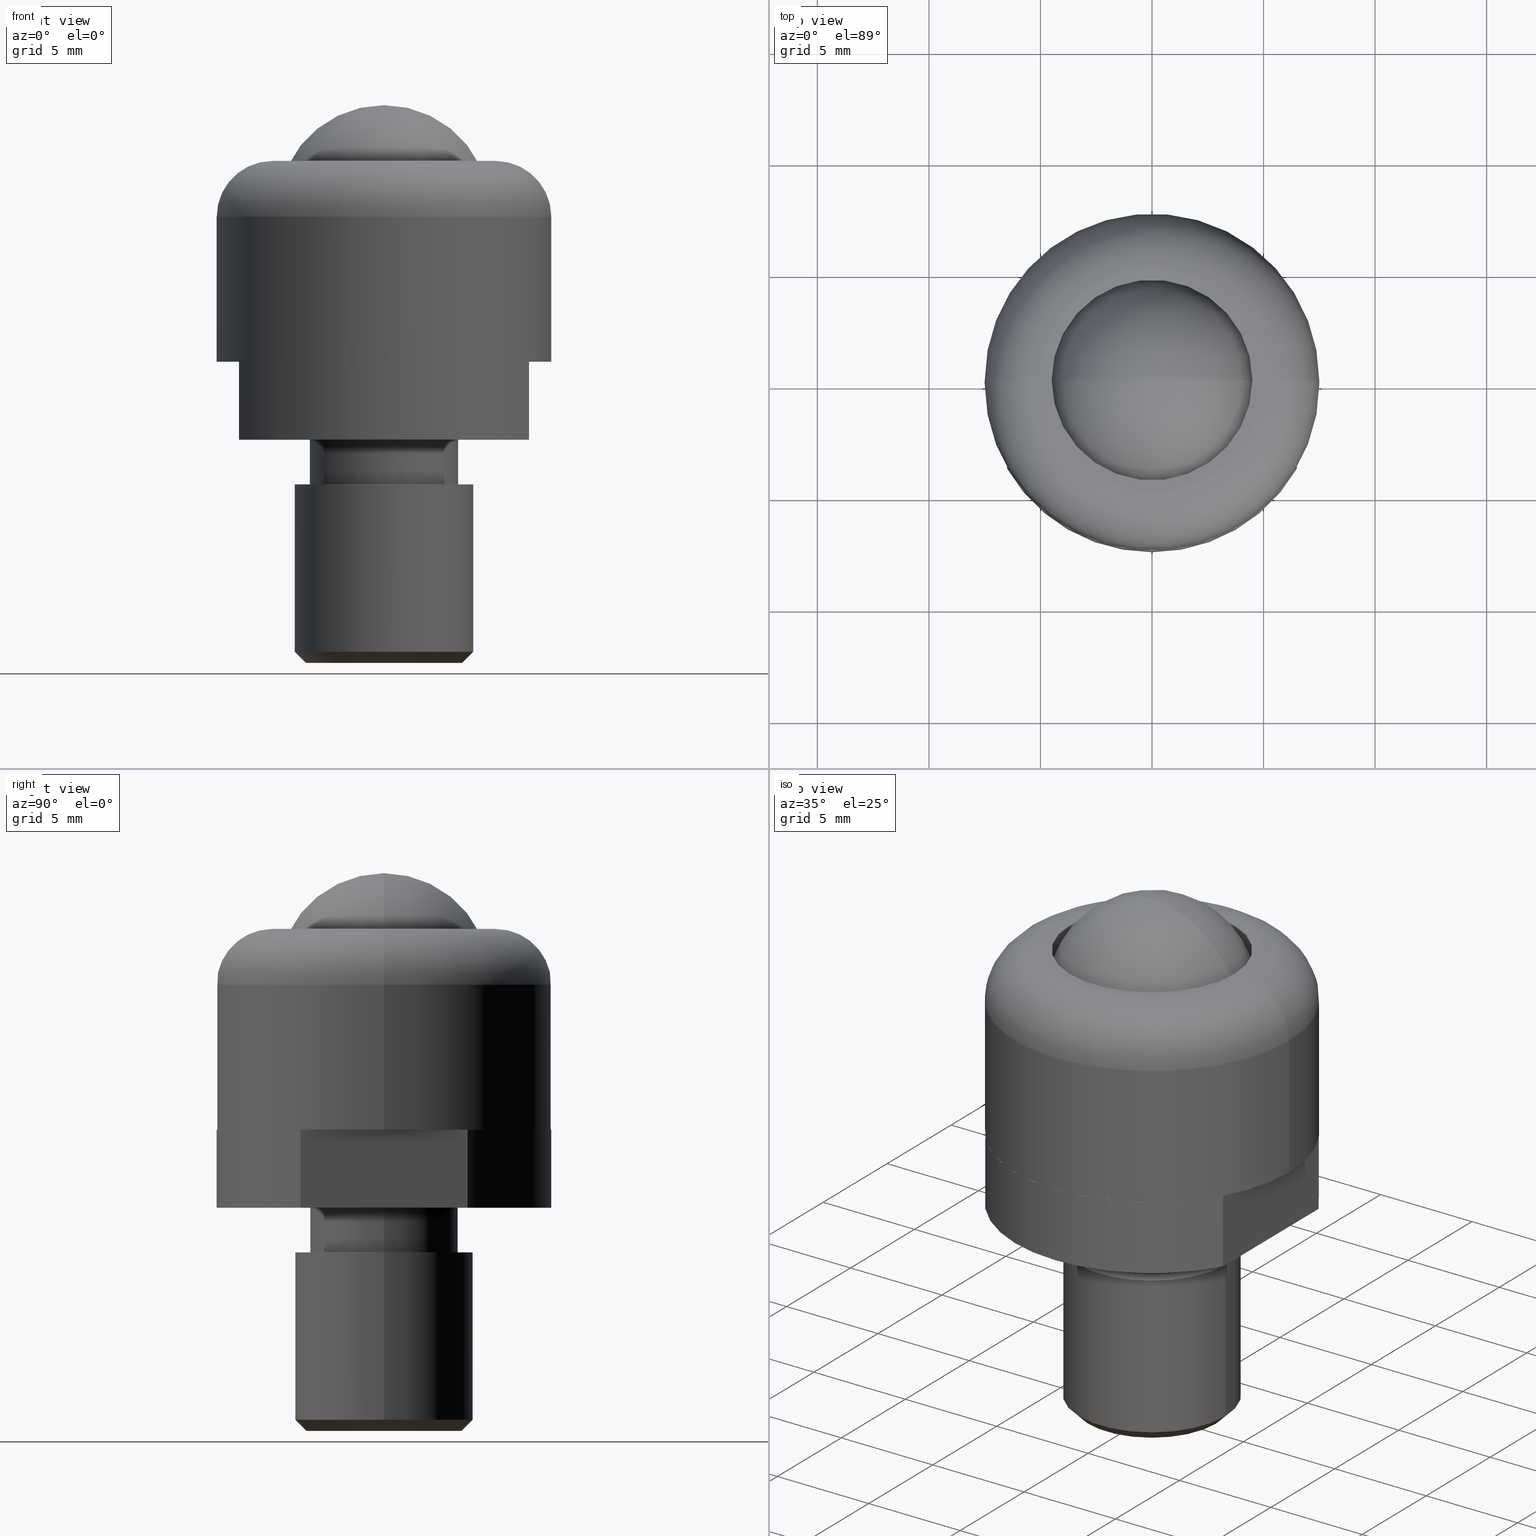
[diagram: canonical four-view strip — front | top / right | iso, engineering-drawing reading convention]
A machine part, canonical four-view strip (front | top / right | iso — engineering-drawing reading convention). The complete STEP part file that produces these views, byte-faithful:
ISO-10303-21;
HEADER;
FILE_DESCRIPTION (( 'STEP AP214' ),
    '1' );
FILE_NAME ('TM_337_P10BU_SS.STEP',
    '2016-05-09T04:12:32',
    ( '' ),
    ( '' ),
    'SwSTEP 2.0',
    'SolidWorks 2015',
    '' );
FILE_SCHEMA (( 'AUTOMOTIVE_DESIGN' ));
ENDSEC;

DATA;
#1 = CARTESIAN_POINT ( 'NONE',  ( 6.500000000000000000, 3.741657386773960000, -1000.000000000000000 ) ) ;
#2 = AXIS2_PLACEMENT_3D ( 'NONE', #451, #479, #524 ) ;
#3 = EDGE_CURVE ( 'NONE', #808, #795, #750, .T. ) ;
#4 = EDGE_CURVE ( 'NONE', #69, #669, #262, .T. ) ;
#5 = DIRECTION ( 'NONE',  ( 0.0000000000000000000, 0.0000000000000000000, -1.000000000000000000 ) ) ;
#6 = ADVANCED_FACE ( 'NONE', ( #455 ), #356, .T. ) ;
#7 = ORIENTED_EDGE ( 'NONE', *, *, #732, .F. ) ;
#8 = EDGE_CURVE ( 'NONE', #868, #284, #562, .T. ) ;
#9 = DIRECTION ( 'NONE',  ( 0.0000000000000000000, 0.0000000000000000000, -1.000000000000000000 ) ) ;
#10 = FACE_BOUND ( 'NONE', #520, .T. ) ;
#11 = ORIENTED_EDGE ( 'NONE', *, *, #421, .T. ) ;
#12 = AXIS2_PLACEMENT_3D ( 'NONE', #412, #911, #84 ) ;
#13 = CARTESIAN_POINT ( 'NONE',  ( -7.500000000000000000, 0.0000000000000000000, 0.0000000000000000000 ) ) ;
#14 =( NAMED_UNIT ( * ) SI_UNIT ( $, .STERADIAN. ) SOLID_ANGLE_UNIT ( ) );
#15 = CARTESIAN_POINT ( 'NONE',  ( 0.0000000000000000000, 0.0000000000000000000, -13.49999999999986100 ) ) ;
#16 = EDGE_CURVE ( 'NONE', #948, #946, #52, .T. ) ;
#17 = DIRECTION ( 'NONE',  ( -1.000000000000000000, 0.0000000000000000000, 0.0000000000000000000 ) ) ;
#18 = CARTESIAN_POINT ( 'NONE',  ( 0.0000000000000000000, 0.0000000000000000000, 6.737500000000000700 ) ) ;
#19 = CIRCLE ( 'NONE', #803, 1.800000000000000000 ) ;
#20 = EDGE_LOOP ( 'NONE', ( #491, #160, #344, #875 ) ) ;
#21 = CARTESIAN_POINT ( 'NONE',  ( 0.0000000000000000000, 0.0000000000000000000, -3.500000000000000000 ) ) ;
#22 = VECTOR ( 'NONE', #711, 1000.000000000000000 ) ;
#23 = EDGE_LOOP ( 'NONE', ( #506, #886, #7, #740 ) ) ;
#24 =( NAMED_UNIT ( * ) SI_UNIT ( $, .STERADIAN. ) SOLID_ANGLE_UNIT ( ) );
#25 = MANIFOLD_SOLID_BREP ( '���߰�1', #720 ) ;
#26 = APPLICATION_CONTEXT ( 'automotive_design' ) ;
#27 = DIRECTION ( 'NONE',  ( 0.0000000000000000000, 0.0000000000000000000, -1.000000000000000000 ) ) ;
#28 = CARTESIAN_POINT ( 'NONE',  ( 4.498888751680794900, 5.509549709465917700E-016, 8.300000000000000700 ) ) ;
#29 = DIRECTION ( 'NONE',  ( 0.0000000000000000000, 0.0000000000000000000, -1.000000000000000000 ) ) ;
#30 = DIRECTION ( 'NONE',  ( 0.0000000000000000000, 0.0000000000000000000, 1.000000000000000000 ) ) ;
#31 = SURFACE_STYLE_USAGE ( .BOTH. , #106 ) ;
#32 = DIRECTION ( 'NONE',  ( -1.000000000000000000, 0.0000000000000000000, 0.0000000000000000000 ) ) ;
#33 = ORIENTED_EDGE ( 'NONE', *, *, #359, .F. ) ;
#34 = EDGE_CURVE ( 'NONE', #148, #734, #221, .T. ) ;
#35 = FACE_OUTER_BOUND ( 'NONE', #20, .T. ) ;
#36 =( NAMED_UNIT ( * ) PLANE_ANGLE_UNIT ( ) SI_UNIT ( $, .RADIAN. ) );
#37 = VERTEX_POINT ( 'NONE', #801 ) ;
#38 = AXIS2_PLACEMENT_3D ( 'NONE', #256, #105, #548 ) ;
#39 = APPLICATION_PROTOCOL_DEFINITION ( 'draft international standard', 'automotive_design', 1998, #54 ) ;
#40 = SURFACE_STYLE_FILL_AREA ( #688 ) ;
#41 = DIRECTION ( 'NONE',  ( -1.000000000000000000, 0.0000000000000000000, 0.0000000000000000000 ) ) ;
#42 = DIRECTION ( 'NONE',  ( 0.0000000000000000000, 0.0000000000000000000, 1.000000000000000000 ) ) ;
#43 = CONICAL_SURFACE ( 'NONE', #600, 3.500000000000000000, 0.7853981633974476100 ) ;
#44 = ORIENTED_EDGE ( 'NONE', *, *, #308, .F. ) ;
#45 = LINE ( 'NONE', #870, #171 ) ;
#46 = STYLED_ITEM ( 'NONE', ( #61 ), #298 ) ;
#47 = ORIENTED_EDGE ( 'NONE', *, *, #920, .F. ) ;
#48 = CIRCLE ( 'NONE', #311, 7.500000000000000000 ) ;
#49 = DIRECTION ( 'NONE',  ( 0.0000000000000000000, 0.0000000000000000000, -1.000000000000000000 ) ) ;
#50 = ORIENTED_EDGE ( 'NONE', *, *, #275, .T. ) ;
#51 = PRODUCT_DEFINITION_CONTEXT ( 'detailed design', #241, 'design' ) ;
#52 = LINE ( 'NONE', #731, #292 ) ;
#53 = DIRECTION ( 'NONE',  ( -1.000000000000000000, 0.0000000000000000000, 0.0000000000000000000 ) ) ;
#54 = APPLICATION_CONTEXT ( 'automotive_design' ) ;
#55 = CONTEXT_DEPENDENT_SHAPE_REPRESENTATION ( #767, #94 ) ;
#56 = AXIS2_PLACEMENT_3D ( 'NONE', #596, #222, #555 ) ;
#57 = CYLINDRICAL_SURFACE ( 'NONE', #756, 7.500000000000000000 ) ;
#58 = EDGE_CURVE ( 'NONE', #946, #893, #949, .T. ) ;
#59 = ORIENTED_EDGE ( 'NONE', *, *, #823, .T. ) ;
#60 = UNCERTAINTY_MEASURE_WITH_UNIT (LENGTH_MEASURE( 1.000000000000000100E-005 ), #528, 'distance_accuracy_value', 'NONE');
#61 = PRESENTATION_STYLE_ASSIGNMENT (( #111 ) ) ;
#62 = EDGE_LOOP ( 'NONE', ( #798, #210 ) ) ;
#63 = LINE ( 'NONE', #521, #826 ) ;
#64 = EDGE_CURVE ( 'NONE', #258, #716, #45, .T. ) ;
#65 = EDGE_CURVE ( 'NONE', #774, #435, #770, .T. ) ;
#66 = AXIS2_PLACEMENT_3D ( 'NONE', #552, #863, #108 ) ;
#67 = ORIENTED_EDGE ( 'NONE', *, *, #832, .T. ) ;
#68 = EDGE_CURVE ( 'NONE', #208, #514, #271, .T. ) ;
#69 = VERTEX_POINT ( 'NONE', #937 ) ;
#70 = ORIENTED_EDGE ( 'NONE', *, *, #682, .T. ) ;
#71 = CYLINDRICAL_SURFACE ( 'NONE', #340, 7.500000000000000000 ) ;
#72 = ORIENTED_EDGE ( 'NONE', *, *, #509, .F. ) ;
#73 = CARTESIAN_POINT ( 'NONE',  ( -6.500000000000000000, 3.741657386773945300, -1000.000000000000000 ) ) ;
#74 = DIRECTION ( 'NONE',  ( 0.0000000000000000000, 0.0000000000000000000, 1.000000000000000000 ) ) ;
#75 = CARTESIAN_POINT ( 'NONE',  ( 0.0000000000000000000, 0.0000000000000000000, 6.737500000000000700 ) ) ;
#76 = AXIS2_PLACEMENT_3D ( 'NONE', #700, #348, #651 ) ;
#77 = ORIENTED_EDGE ( 'NONE', *, *, #817, .F. ) ;
#78 = CIRCLE ( 'NONE', #206, 2.500000000000000000 ) ;
#79 = DIRECTION ( 'NONE',  ( 0.0000000000000000000, 0.0000000000000000000, -1.000000000000000000 ) ) ;
#80 = EDGE_CURVE ( 'NONE', #284, #868, #570, .T. ) ;
#81 = AXIS2_PLACEMENT_3D ( 'NONE', #698, #29, #531 ) ;
#82 = APPLICATION_CONTEXT ( 'automotive_design' ) ;
#83 = DIRECTION ( 'NONE',  ( 0.0000000000000000000, 0.0000000000000000000, 1.000000000000000000 ) ) ;
#84 = DIRECTION ( 'NONE',  ( -1.000000000000000000, 0.0000000000000000000, 0.0000000000000000000 ) ) ;
#85 =( NAMED_UNIT ( * ) SI_UNIT ( $, .STERADIAN. ) SOLID_ANGLE_UNIT ( ) );
#86 = ORIENTED_EDGE ( 'NONE', *, *, #737, .T. ) ;
#87 = ADVANCED_FACE ( 'NONE', ( #199 ), #43, .T. ) ;
#88 = COLOUR_RGB ( '',0.7921568627450980000, 0.8196078431372548800, 0.9333333333333333500 ) ;
#89 = EDGE_LOOP ( 'NONE', ( #915, #44 ) ) ;
#90 = SURFACE_SIDE_STYLE ('',( #572 ) ) ;
#91 = ADVANCED_FACE ( 'NONE', ( #426 ), #57, .T. ) ;
#92 = EDGE_LOOP ( 'NONE', ( #940, #146 ) ) ;
#93 = SURFACE_STYLE_FILL_AREA ( #431 ) ;
#94 = PRODUCT_DEFINITION_SHAPE ( 'NONE', 'NONE',  #955 ) ;
#95 = VERTEX_POINT ( 'NONE', #268 ) ;
#96 = DIRECTION ( 'NONE',  ( -1.000000000000000000, -1.224646799147353000E-016, 0.0000000000000000000 ) ) ;
#97 = PRODUCT_CONTEXT ( 'NONE', #901, 'mechanical' ) ;
#98 = CARTESIAN_POINT ( 'NONE',  ( 3.999999999999909800, 0.0000000000000000000, -5.500000000000000000 ) ) ;
#99 = DIRECTION ( 'NONE',  ( -1.000000000000000000, 0.0000000000000000000, 0.0000000000000000000 ) ) ;
#100 = CARTESIAN_POINT ( 'NONE',  ( 0.0000000000000000000, 0.0000000000000000000, 0.0000000000000000000 ) ) ;
#101 = DIRECTION ( 'NONE',  ( 0.0000000000000000000, 0.0000000000000000000, -1.000000000000000000 ) ) ;
#102 = AXIS2_PLACEMENT_3D ( 'NONE', #822, #550, #252 ) ;
#103 = EDGE_LOOP ( 'NONE', ( #234, #709, #190, #897 ) ) ;
#104 = CYLINDRICAL_SURFACE ( 'NONE', #152, 7.500000000000000000 ) ;
#105 = DIRECTION ( 'NONE',  ( 0.0000000000000000000, 0.0000000000000000000, -1.000000000000000000 ) ) ;
#106 = SURFACE_SIDE_STYLE ('',( #902 ) ) ;
#107 = PLANE ( 'NONE',  #815 ) ;
#108 = DIRECTION ( 'NONE',  ( -1.000000000000000000, 0.0000000000000000000, 0.0000000000000000000 ) ) ;
#109 = EDGE_LOOP ( 'NONE', ( #461, #324, #722, #438 ) ) ;
#110 = DIRECTION ( 'NONE',  ( 0.0000000000000000000, 0.0000000000000000000, -1.000000000000000000 ) ) ;
#111 = SURFACE_STYLE_USAGE ( .BOTH. , #641 ) ;
#112 = PLANE ( 'NONE',  #577 ) ;
#113 = EDGE_CURVE ( 'NONE', #834, #537, #397, .T. ) ;
#114 = EDGE_CURVE ( 'NONE', #808, #148, #365, .T. ) ;
#115 = DIRECTION ( 'NONE',  ( -0.0000000000000000000, -0.0000000000000000000, -1.000000000000000000 ) ) ;
#116 = DIRECTION ( 'NONE',  ( 0.0000000000000000000, 0.0000000000000000000, 1.000000000000000000 ) ) ;
#117 = STYLED_ITEM ( 'NONE', ( #887 ), #730 ) ;
#118 = CARTESIAN_POINT ( 'NONE',  ( 0.0000000000000000000, 0.0000000000000000000, 8.300000000000000700 ) ) ;
#119 = VERTEX_POINT ( 'NONE', #717 ) ;
#120 = EDGE_CURVE ( 'NONE', #868, #430, #19, .T. ) ;
#121 = SURFACE_STYLE_FILL_AREA ( #900 ) ;
#122 = ORIENTED_EDGE ( 'NONE', *, *, #154, .T. ) ;
#123 = SHAPE_DEFINITION_REPRESENTATION ( #471, #583 ) ;
#124 = CARTESIAN_POINT ( 'NONE',  ( 0.0000000000000000000, 0.0000000000000000000, 0.0000000000000000000 ) ) ;
#125 = APPLICATION_PROTOCOL_DEFINITION ( 'draft international standard', 'automotive_design', 1998, #901 ) ;
#126 = MECHANICAL_DESIGN_GEOMETRIC_PRESENTATION_REPRESENTATION (  '', ( #289 ), #172 ) ;
#127 = ADVANCED_FACE ( 'NONE', ( #846 ), #567, .T. ) ;
#128 = CARTESIAN_POINT ( 'NONE',  ( 0.0000000000000000000, 0.0000000000000000000, 8.300000000000000700 ) ) ;
#129 = ORIENTED_EDGE ( 'NONE', *, *, #308, .T. ) ;
#130 = SHAPE_REPRESENTATION_RELATIONSHIP ( 'NONE' , 'NONE' ,  #260, #224 ) ;
#131 = DIRECTION ( 'NONE',  ( -1.000000000000000000, 0.0000000000000000000, 0.0000000000000000000 ) ) ;
#132 = ORIENTED_EDGE ( 'NONE', *, *, #113, .F. ) ;
#133 = UNCERTAINTY_MEASURE_WITH_UNIT (LENGTH_MEASURE( 1.000000000000000100E-005 ), #400, 'distance_accuracy_value', 'NONE');
#134 = FACE_OUTER_BOUND ( 'NONE', #586, .T. ) ;
#135 = AXIS2_PLACEMENT_3D ( 'NONE', #346, #42, #427 ) ;
#136 = DIRECTION ( 'NONE',  ( 0.0000000000000000000, 0.0000000000000000000, -1.000000000000000000 ) ) ;
#137 = EDGE_CURVE ( 'NONE', #774, #119, #766, .T. ) ;
#138 = AXIS2_PLACEMENT_3D ( 'NONE', #751, #718, #710 ) ;
#139 = COLOUR_RGB ( '',0.7921568627450980000, 0.8196078431372548800, 0.9333333333333333500 ) ;
#140 = ORIENTED_EDGE ( 'NONE', *, *, #318, .T. ) ;
#141 = CYLINDRICAL_SURFACE ( 'NONE', #12, 3.323500000001154800 ) ;
#142 = VERTEX_POINT ( 'NONE', #184 ) ;
#143 = CIRCLE ( 'NONE', #281, 4.762499999999999300 ) ;
#144 = ADVANCED_FACE ( 'NONE', ( #654, #240 ), #320, .F. ) ;
#145 = DIRECTION ( 'NONE',  ( 0.0000000000000000000, 0.0000000000000000000, -1.000000000000000000 ) ) ;
#146 = ORIENTED_EDGE ( 'NONE', *, *, #114, .T. ) ;
#147 = CIRCLE ( 'NONE', #664, 3.323500000000000100 ) ;
#148 = VERTEX_POINT ( 'NONE', #629 ) ;
#149 = TOROIDAL_SURFACE ( 'NONE', #778, 5.000000000000000000, 1.800000000000000000 ) ;
#150 = ADVANCED_FACE ( 'NONE', ( #456 ), #216, .T. ) ;
#151 = CARTESIAN_POINT ( 'NONE',  ( -6.500000000000000000, -3.741657386773940000, -1000.000000000000000 ) ) ;
#152 = AXIS2_PLACEMENT_3D ( 'NONE', #813, #314, #327 ) ;
#153 = DIRECTION ( 'NONE',  ( 0.0000000000000000000, 0.0000000000000000000, -1.000000000000000000 ) ) ;
#154 = EDGE_CURVE ( 'NONE', #430, #614, #174, .T. ) ;
#155 = PLANE ( 'NONE',  #908 ) ;
#156 = EDGE_CURVE ( 'NONE', #734, #795, #512, .T. ) ;
#157 =( NAMED_UNIT ( * ) PLANE_ANGLE_UNIT ( ) SI_UNIT ( $, .RADIAN. ) );
#158 = DIRECTION ( 'NONE',  ( -1.224646799147353200E-016, 1.000000000000000000, 0.0000000000000000000 ) ) ;
#159 = PRESENTATION_LAYER_ASSIGNMENT (  '', '', ( #117 ) ) ;
#160 = ORIENTED_EDGE ( 'NONE', *, *, #213, .T. ) ;
#161 = DIRECTION ( 'NONE',  ( 0.0000000000000000000, 0.0000000000000000000, -1.000000000000000000 ) ) ;
#162 = FACE_OUTER_BOUND ( 'NONE', #62, .T. ) ;
#163 = VERTEX_POINT ( 'NONE', #475 ) ;
#164 = DIRECTION ( 'NONE',  ( 0.0000000000000000000, 0.0000000000000000000, 1.000000000000000000 ) ) ;
#165 = EDGE_CURVE ( 'NONE', #667, #694, #187, .T. ) ;
#166 = ADVANCED_FACE ( 'NONE', ( #590 ), #71, .T. ) ;
#167 = DIRECTION ( 'NONE',  ( 0.0000000000000000000, 0.0000000000000000000, -1.000000000000000000 ) ) ;
#168 = CARTESIAN_POINT ( 'NONE',  ( 0.0000000000000000000, 0.0000000000000000000, -12.99999999999986100 ) ) ;
#169 = ORIENTED_EDGE ( 'NONE', *, *, #828, .T. ) ;
#170 = FILL_AREA_STYLE ('',( #445 ) ) ;
#171 = VECTOR ( 'NONE', #793, 1000.000000000000000 ) ;
#172 =( GEOMETRIC_REPRESENTATION_CONTEXT ( 3 ) GLOBAL_UNCERTAINTY_ASSIGNED_CONTEXT ( ( #816 ) ) GLOBAL_UNIT_ASSIGNED_CONTEXT ( ( #839, #835, #296 ) ) REPRESENTATION_CONTEXT ( 'NONE', 'WORKASPACE' ) );
#173 = PRODUCT_DEFINITION_CONTEXT ( 'detailed design', #54, 'design' ) ;
#174 = CIRCLE ( 'NONE', #859, 6.799999999999999800 ) ;
#175 = ORIENTED_EDGE ( 'NONE', *, *, #421, .F. ) ;
#176 = DIRECTION ( 'NONE',  ( -1.000000000000000000, 0.0000000000000000000, 0.0000000000000000000 ) ) ;
#177 = LINE ( 'NONE', #151, #917 ) ;
#178 = EDGE_LOOP ( 'NONE', ( #300, #606, #508, #541 ) ) ;
#179 = CIRCLE ( 'NONE', #672, 3.323500000001154800 ) ;
#180 = CARTESIAN_POINT ( 'NONE',  ( 0.0000000000000000000, 0.0000000000000000000, 6.500000000000000000 ) ) ;
#181 = CARTESIAN_POINT ( 'NONE',  ( 7.500000000000000000, 0.0000000000000000000, 0.0000000000000000000 ) ) ;
#182 = PRODUCT ( 'housing', 'housing', '', ( #97 ) ) ;
#183 = SURFACE_STYLE_USAGE ( .BOTH. , #459 ) ;
#184 = CARTESIAN_POINT ( 'NONE',  ( -3.500000000000000000, 4.592425496802574000E-016, -13.49999999999986100 ) ) ;
#185 = CARTESIAN_POINT ( 'NONE',  ( 0.0000000000000000000, 0.0000000000000000000, -13.49999999999986100 ) ) ;
#186 = AXIS2_PLACEMENT_3D ( 'NONE', #497, #403, #310 ) ;
#187 = CIRCLE ( 'NONE', #191, 4.000000000000000000 ) ;
#188 = AXIS2_PLACEMENT_3D ( 'NONE', #205, #657, #131 ) ;
#189 = DIRECTION ( 'NONE',  ( 0.0000000000000000000, 0.0000000000000000000, 1.000000000000000000 ) ) ;
#190 = ORIENTED_EDGE ( 'NONE', *, *, #568, .T. ) ;
#191 = AXIS2_PLACEMENT_3D ( 'NONE', #833, #468, #602 ) ;
#192 = FACE_OUTER_BOUND ( 'NONE', #581, .T. ) ;
#193 = VERTEX_POINT ( 'NONE', #617 ) ;
#194 = CIRCLE ( 'NONE', #432, 4.498888751680794900 ) ;
#195 = DIRECTION ( 'NONE',  ( -1.000000000000000000, -1.224646799147353200E-016, 0.0000000000000000000 ) ) ;
#196 = PRODUCT ( 'pan', 'pan', '', ( #394 ) ) ;
#197 = CARTESIAN_POINT ( 'NONE',  ( 4.498888751680794900, 5.509549709465917700E-016, 0.0000000000000000000 ) ) ;
#198 =( LENGTH_UNIT ( ) NAMED_UNIT ( * ) SI_UNIT ( .MILLI., .METRE. ) );
#199 = FACE_OUTER_BOUND ( 'NONE', #877, .T. ) ;
#200 = ORIENTED_EDGE ( 'NONE', *, *, #361, .F. ) ;
#201 = ORIENTED_EDGE ( 'NONE', *, *, #16, .F. ) ;
#202 = CIRCLE ( 'NONE', #505, 7.500000000000000000 ) ;
#203 = ORIENTED_EDGE ( 'NONE', *, *, #8, .T. ) ;
#204 = MANIFOLD_SOLID_BREP ( '���߰�1', #466 ) ;
#205 = CARTESIAN_POINT ( 'NONE',  ( 0.0000000000000000000, 0.0000000000000000000, 0.0000000000000000000 ) ) ;
#206 = AXIS2_PLACEMENT_3D ( 'NONE', #913, #158, #195 ) ;
#207 = EDGE_CURVE ( 'NONE', #853, #435, #232, .T. ) ;
#208 = VERTEX_POINT ( 'NONE', #306 ) ;
#209 = LINE ( 'NONE', #936, #362 ) ;
#210 = ORIENTED_EDGE ( 'NONE', *, *, #113, .T. ) ;
#211 = EDGE_CURVE ( 'NONE', #163, #351, #818, .T. ) ;
#212 = MECHANICAL_DESIGN_GEOMETRIC_PRESENTATION_REPRESENTATION (  '', ( #117 ), #270 ) ;
#213 = EDGE_CURVE ( 'NONE', #430, #69, #598, .T. ) ;
#214 = ORIENTED_EDGE ( 'NONE', *, *, #425, .F. ) ;
#215 = PRODUCT_DEFINITION_SHAPE ( 'NONE', 'NONE',  #518 ) ;
#216 = TOROIDAL_SURFACE ( 'NONE', #81, 5.000000000000000000, 2.500000000000000000 ) ;
#217 = ORIENTED_EDGE ( 'NONE', *, *, #137, .F. ) ;
#218 = LINE ( 'NONE', #424, #22 ) ;
#219 = ORIENTED_EDGE ( 'NONE', *, *, #881, .F. ) ;
#220 = AXIS2_PLACEMENT_3D ( 'NONE', #674, #671, #631 ) ;
#221 = LINE ( 'NONE', #650, #589 ) ;
#222 = DIRECTION ( 'NONE',  ( 0.0000000000000000000, 0.0000000000000000000, -1.000000000000000000 ) ) ;
#223 = DIRECTION ( 'NONE',  ( 0.0000000000000000000, 0.0000000000000000000, 1.000000000000000000 ) ) ;
#224 = ADVANCED_BREP_SHAPE_REPRESENTATION ( '', ( #25, #951 ), #752 ) ;
#225 = DIRECTION ( 'NONE',  ( 1.000000000000000000, 0.0000000000000000000, 0.0000000000000000000 ) ) ;
#226 = AXIS2_PLACEMENT_3D ( 'NONE', #601, #683, #621 ) ;
#227 = CARTESIAN_POINT ( 'NONE',  ( 0.0000000000000000000, 0.0000000000000000000, -5.500000000000000000 ) ) ;
#228 = EDGE_LOOP ( 'NONE', ( #217, #175, #777, #561 ) ) ;
#229 = APPLICATION_PROTOCOL_DEFINITION ( 'draft international standard', 'automotive_design', 1998, #241 ) ;
#230 = CARTESIAN_POINT ( 'NONE',  ( 5.000000000000000000, 7.654042494670956600E-016, 9.000000000000000000 ) ) ;
#231 = FACE_OUTER_BOUND ( 'NONE', #178, .T. ) ;
#232 = LINE ( 'NONE', #391, #677 ) ;
#233 = DIRECTION ( 'NONE',  ( 0.0000000000000000000, 0.0000000000000000000, -1.000000000000000000 ) ) ;
#234 = ORIENTED_EDGE ( 'NONE', *, *, #120, .F. ) ;
#235 = PRESENTATION_LAYER_ASSIGNMENT (  '', '', ( #289 ) ) ;
#236 =( NAMED_UNIT ( * ) PLANE_ANGLE_UNIT ( ) SI_UNIT ( $, .RADIAN. ) );
#237 = CARTESIAN_POINT ( 'NONE',  ( 6.500000000000000000, -3.741657386773955100, -1000.000000000000000 ) ) ;
#238 = FILL_AREA_STYLE_COLOUR ( '', #905 ) ;
#239 = COLOUR_RGB ( '',0.7921568627450980000, 0.8196078431372548800, 0.9333333333333333500 ) ;
#240 = FACE_OUTER_BOUND ( 'NONE', #89, .T. ) ;
#241 = APPLICATION_CONTEXT ( 'automotive_design' ) ;
#242 = CARTESIAN_POINT ( 'NONE',  ( 0.0000000000000000000, 0.0000000000000000000, 6.500000000000000000 ) ) ;
#243 = DIRECTION ( 'NONE',  ( 0.0000000000000000000, 0.0000000000000000000, -1.000000000000000000 ) ) ;
#244 = ORIENTED_EDGE ( 'NONE', *, *, #632, .F. ) ;
#245 = CARTESIAN_POINT ( 'NONE',  ( 7.500000000000000000, 9.184850993605147900E-016, 0.0000000000000000000 ) ) ;
#246 = CIRCLE ( 'NONE', #363, 3.323500000001154800 ) ;
#247 = ORIENTED_EDGE ( 'NONE', *, *, #881, .T. ) ;
#248 = DIRECTION ( 'NONE',  ( -1.224646799147353200E-016, 1.000000000000000000, 0.0000000000000000000 ) ) ;
#249 = PLANE ( 'NONE',  #582 ) ;
#250 = LINE ( 'NONE', #13, #574 ) ;
#251 = PRODUCT_CONTEXT ( 'NONE', #873, 'mechanical' ) ;
#252 = DIRECTION ( 'NONE',  ( -1.000000000000000000, 0.0000000000000000000, 0.0000000000000000000 ) ) ;
#253 = CARTESIAN_POINT ( 'NONE',  ( 0.0000000000000000000, 0.0000000000000000000, 6.737500000000000700 ) ) ;
#254 = DIRECTION ( 'NONE',  ( 0.0000000000000000000, 0.0000000000000000000, 1.000000000000000000 ) ) ;
#255 = CARTESIAN_POINT ( 'NONE',  ( 0.0000000000000000000, 0.0000000000000000000, -3.500000000000000000 ) ) ;
#256 = CARTESIAN_POINT ( 'NONE',  ( 0.0000000000000000000, 0.0000000000000000000, 9.000000000000000000 ) ) ;
#257 = SURFACE_STYLE_FILL_AREA ( #492 ) ;
#258 = VERTEX_POINT ( 'NONE', #529 ) ;
#259 = CYLINDRICAL_SURFACE ( 'NONE', #357, 4.498888751680794900 ) ;
#260 = SHAPE_REPRESENTATION ( 'pan', ( #951 ), #752 ) ;
#261 = CARTESIAN_POINT ( 'NONE',  ( 0.0000000000000000000, 0.0000000000000000000, 0.0000000000000000000 ) ) ;
#262 = CIRCLE ( 'NONE', #188, 6.799999999999999800 ) ;
#263 = APPLICATION_PROTOCOL_DEFINITION ( 'draft international standard', 'automotive_design', 1998, #873 ) ;
#264 = CARTESIAN_POINT ( 'NONE',  ( 0.0000000000000000000, 0.0000000000000000000, 6.500000000000000000 ) ) ;
#265 = EDGE_CURVE ( 'NONE', #834, #537, #143, .T. ) ;
#266 = DIRECTION ( 'NONE',  ( -0.0000000000000000000, -1.000000000000000000, -0.0000000000000000000 ) ) ;
#267 = EDGE_CURVE ( 'NONE', #360, #291, #827, .T. ) ;
#268 = CARTESIAN_POINT ( 'NONE',  ( -5.000000000000000000, 0.0000000000000000000, 9.000000000000000000 ) ) ;
#269 = CARTESIAN_POINT ( 'NONE',  ( 6.500000000000000000, 3.741657386773960000, 0.0000000000000000000 ) ) ;
#270 =( GEOMETRIC_REPRESENTATION_CONTEXT ( 3 ) GLOBAL_UNCERTAINTY_ASSIGNED_CONTEXT ( ( #655 ) ) GLOBAL_UNIT_ASSIGNED_CONTEXT ( ( #847, #328, #762 ) ) REPRESENTATION_CONTEXT ( 'NONE', 'WORKASPACE' ) );
#271 = CIRCLE ( 'NONE', #690, 7.500000000000000000 ) ;
#272 = DIRECTION ( 'NONE',  ( 1.000000000000000000, -8.881784197001252300E-016, 0.0000000000000000000 ) ) ;
#273 = DIRECTION ( 'NONE',  ( 1.000000000000000000, 0.0000000000000000000, 0.0000000000000000000 ) ) ;
#274 = ORIENTED_EDGE ( 'NONE', *, *, #828, .F. ) ;
#275 = EDGE_CURVE ( 'NONE', #694, #716, #495, .T. ) ;
#276 = ORIENTED_EDGE ( 'NONE', *, *, #880, .F. ) ;
#277 = CARTESIAN_POINT ( 'NONE',  ( 0.0000000000000000000, 0.0000000000000000000, -5.500000000000000000 ) ) ;
#278 = ORIENTED_EDGE ( 'NONE', *, *, #885, .T. ) ;
#279 =( NAMED_UNIT ( * ) PLANE_ANGLE_UNIT ( ) SI_UNIT ( $, .RADIAN. ) );
#280 = FILL_AREA_STYLE ('',( #326 ) ) ;
#281 = AXIS2_PLACEMENT_3D ( 'NONE', #75, #395, #83 ) ;
#282 = PRESENTATION_STYLE_ASSIGNMENT (( #350 ) ) ;
#283 = EDGE_LOOP ( 'NONE', ( #342, #559 ) ) ;
#284 = VERTEX_POINT ( 'NONE', #910 ) ;
#285 = VECTOR ( 'NONE', #30, 1000.000000000000000 ) ;
#286 = PRESENTATION_STYLE_ASSIGNMENT (( #857 ) ) ;
#287 =( GEOMETRIC_REPRESENTATION_CONTEXT ( 3 ) GLOBAL_UNCERTAINTY_ASSIGNED_CONTEXT ( ( #854 ) ) GLOBAL_UNIT_ASSIGNED_CONTEXT ( ( #939, #856, #85 ) ) REPRESENTATION_CONTEXT ( 'NONE', 'WORKASPACE' ) );
#288 = AXIS2_PLACEMENT_3D ( 'NONE', #128, #575, #53 ) ;
#289 = STYLED_ITEM ( 'NONE', ( #286 ), #204 ) ;
#290 = ORIENTED_EDGE ( 'NONE', *, *, #265, .T. ) ;
#291 = VERTEX_POINT ( 'NONE', #482 ) ;
#292 = VECTOR ( 'NONE', #653, 1000.000000000000000 ) ;
#293 = ITEM_DEFINED_TRANSFORMATION ( 'NONE', 'NONE', #135,  #951 ) ;
#294 = SHAPE_REPRESENTATION ( 'ball_A', ( #951 ), #867 ) ;
#295 = PRODUCT_DEFINITION_CONTEXT ( 'detailed design', #82, 'design' ) ;
#296 =( NAMED_UNIT ( * ) SI_UNIT ( $, .STERADIAN. ) SOLID_ANGLE_UNIT ( ) );
#297 = DIRECTION ( 'NONE',  ( 1.000000000000000000, 0.0000000000000000000, 0.0000000000000000000 ) ) ;
#298 = ADVANCED_BREP_SHAPE_REPRESENTATION ( '', ( #204, #951 ), #867 ) ;
#299 = DIRECTION ( 'NONE',  ( -1.000000000000000000, 0.0000000000000000000, 0.0000000000000000000 ) ) ;
#300 = ORIENTED_EDGE ( 'NONE', *, *, #876, .T. ) ;
#301 = DIRECTION ( 'NONE',  ( -0.0000000000000000000, -0.0000000000000000000, -1.000000000000000000 ) ) ;
#302 = FACE_OUTER_BOUND ( 'NONE', #591, .T. ) ;
#303 = DIRECTION ( 'NONE',  ( 0.0000000000000000000, 0.0000000000000000000, -1.000000000000000000 ) ) ;
#304 = DIRECTION ( 'NONE',  ( -1.000000000000000000, 0.0000000000000000000, 0.0000000000000000000 ) ) ;
#305 = APPLICATION_CONTEXT ( 'automotive_design' ) ;
#306 = CARTESIAN_POINT ( 'NONE',  ( 6.500000000000000000, -3.741657386773955100, -3.499999999999950300 ) ) ;
#307 = PRODUCT_RELATED_PRODUCT_CATEGORY ( 'part', '', ( #182 ) ) ;
#308 = EDGE_CURVE ( 'NONE', #571, #95, #385, .T. ) ;
#309 = EDGE_CURVE ( 'NONE', #795, #734, #194, .T. ) ;
#310 = DIRECTION ( 'NONE',  ( 1.000000000000000000, 0.0000000000000000000, 0.0000000000000000000 ) ) ;
#311 = AXIS2_PLACEMENT_3D ( 'NONE', #624, #780, #922 ) ;
#312 = ADVANCED_FACE ( 'NONE', ( #841, #665 ), #112, .F. ) ;
#313 = ORIENTED_EDGE ( 'NONE', *, *, #364, .F. ) ;
#314 = DIRECTION ( 'NONE',  ( 0.0000000000000000000, 0.0000000000000000000, -1.000000000000000000 ) ) ;
#315 = CYLINDRICAL_SURFACE ( 'NONE', #66, 4.000000000000000000 ) ;
#316 = EDGE_LOOP ( 'NONE', ( #370, #50, #576, #942 ) ) ;
#317 = CARTESIAN_POINT ( 'NONE',  ( -3.500000000000000000, 4.286263797015736600E-016, -13.49999999999986100 ) ) ;
#318 = EDGE_CURVE ( 'NONE', #193, #716, #536, .T. ) ;
#319 = DIRECTION ( 'NONE',  ( 0.0000000000000000000, 0.0000000000000000000, -1.000000000000000000 ) ) ;
#320 = PLANE ( 'NONE',  #38 ) ;
#321 = DIRECTION ( 'NONE',  ( -1.000000000000000000, 0.0000000000000000000, 0.0000000000000000000 ) ) ;
#322 = AXIS2_PLACEMENT_3D ( 'NONE', #760, #642, #929 ) ;
#323 = CARTESIAN_POINT ( 'NONE',  ( -7.500000000000000000, 0.0000000000000000000, 6.500000000000000000 ) ) ;
#324 = ORIENTED_EDGE ( 'NONE', *, *, #3, .T. ) ;
#325 = CARTESIAN_POINT ( 'NONE',  ( 0.0000000000000000000, 0.0000000000000000000, 0.0000000000000000000 ) ) ;
#326 = FILL_AREA_STYLE_COLOUR ( '', #139 ) ;
#327 = DIRECTION ( 'NONE',  ( -1.000000000000000000, 0.0000000000000000000, 0.0000000000000000000 ) ) ;
#328 =( NAMED_UNIT ( * ) PLANE_ANGLE_UNIT ( ) SI_UNIT ( $, .RADIAN. ) );
#329 = SHAPE_REPRESENTATION_RELATIONSHIP ( 'NONE' , 'NONE' ,  #898, #754 ) ;
#330 = ORIENTED_EDGE ( 'NONE', *, *, #267, .F. ) ;
#331 = CYLINDRICAL_SURFACE ( 'NONE', #2, 7.500000000000000000 ) ;
#332 = DIRECTION ( 'NONE',  ( 0.0000000000000000000, 0.0000000000000000000, -1.000000000000000000 ) ) ;
#333 = DIRECTION ( 'NONE',  ( 1.000000000000000000, 0.0000000000000000000, 0.0000000000000000000 ) ) ;
#334 = APPLICATION_PROTOCOL_DEFINITION ( 'draft international standard', 'automotive_design', 1998, #82 ) ;
#335 = DIRECTION ( 'NONE',  ( 0.0000000000000000000, 0.0000000000000000000, -1.000000000000000000 ) ) ;
#336 = DIRECTION ( 'NONE',  ( -1.000000000000000000, 0.0000000000000000000, 0.0000000000000000000 ) ) ;
#337 = DIRECTION ( 'NONE',  ( 1.000000000000000000, 1.224646799147353200E-016, 0.0000000000000000000 ) ) ;
#338 = AXIS2_PLACEMENT_3D ( 'NONE', #124, #579, #500 ) ;
#339 = DIRECTION ( 'NONE',  ( 0.0000000000000000000, 0.0000000000000000000, -1.000000000000000000 ) ) ;
#340 = AXIS2_PLACEMENT_3D ( 'NONE', #325, #9, #689 ) ;
#341 =( NAMED_UNIT ( * ) SI_UNIT ( $, .STERADIAN. ) SOLID_ANGLE_UNIT ( ) );
#342 = ORIENTED_EDGE ( 'NONE', *, *, #58, .T. ) ;
#343 = FACE_OUTER_BOUND ( 'NONE', #634, .T. ) ;
#344 = ORIENTED_EDGE ( 'NONE', *, *, #4, .T. ) ;
#345 = DIRECTION ( 'NONE',  ( -0.0000000000000000000, -0.0000000000000000000, -1.000000000000000000 ) ) ;
#346 = CARTESIAN_POINT ( 'NONE',  ( 0.0000000000000000000, 0.0000000000000000000, 0.0000000000000000000 ) ) ;
#347 = PRODUCT ( 'TM_337_P10BU_SS', 'TM_337_P10BU_SS', '', ( #251 ) ) ;
#348 = DIRECTION ( 'NONE',  ( 0.0000000000000000000, 0.0000000000000000000, 1.000000000000000000 ) ) ;
#349 = PRODUCT_DEFINITION_SHAPE ( 'NONE', 'NONE',  #483 ) ;
#350 = SURFACE_STYLE_USAGE ( .BOTH. , #872 ) ;
#351 = VERTEX_POINT ( 'NONE', #462 ) ;
#352 = FACE_OUTER_BOUND ( 'NONE', #228, .T. ) ;
#353 = PRESENTATION_LAYER_ASSIGNMENT (  '', '', ( #46 ) ) ;
#354 = EDGE_LOOP ( 'NONE', ( #413, #584, #707, #381 ) ) ;
#355 = TOROIDAL_SURFACE ( 'NONE', #551, 5.000000000000000000, 2.500000000000000000 ) ;
#356 = PLANE ( 'NONE',  #338 ) ;
#357 = AXIS2_PLACEMENT_3D ( 'NONE', #811, #145, #17 ) ;
#358 = PRODUCT_DEFINITION_FORMATION_WITH_SPECIFIED_SOURCE ( 'ANY', '', #884, .NOT_KNOWN. ) ;
#359 = EDGE_CURVE ( 'NONE', #208, #853, #578, .T. ) ;
#360 = VERTEX_POINT ( 'NONE', #366 ) ;
#361 = EDGE_CURVE ( 'NONE', #614, #430, #396, .T. ) ;
#362 = VECTOR ( 'NONE', #161, 1000.000000000000000 ) ;
#363 = AXIS2_PLACEMENT_3D ( 'NONE', #255, #852, #333 ) ;
#364 = EDGE_CURVE ( 'NONE', #37, #948, #179, .T. ) ;
#365 = CIRCLE ( 'NONE', #662, 4.498888751680794900 ) ;
#366 = CARTESIAN_POINT ( 'NONE',  ( -6.500000000000000000, 3.741657386773945300, -3.499999999999950300 ) ) ;
#367 = AXIS2_PLACEMENT_3D ( 'NONE', #916, #546, #321 ) ;
#368 = ORIENTED_EDGE ( 'NONE', *, *, #64, .F. ) ;
#369 = CIRCLE ( 'NONE', #564, 5.000000000000000000 ) ;
#370 = ORIENTED_EDGE ( 'NONE', *, *, #165, .T. ) ;
#371 = DIRECTION ( 'NONE',  ( 0.0000000000000000000, 0.0000000000000000000, -1.000000000000000000 ) ) ;
#372 = VECTOR ( 'NONE', #845, 1000.000000000000000 ) ;
#373 = DIRECTION ( 'NONE',  ( 0.0000000000000000000, 0.0000000000000000000, -1.000000000000000000 ) ) ;
#374 = CARTESIAN_POINT ( 'NONE',  ( 2.916190190469635100E-016, 0.0000000000000000000, 11.50000000000000000 ) ) ;
#375 = AXIS2_PLACEMENT_3D ( 'NONE', #926, #545, #273 ) ;
#376 = CARTESIAN_POINT ( 'NONE',  ( -3.323500000001154800, 0.0000000000000000000, -3.500000000000000000 ) ) ;
#377 = ADVANCED_FACE ( 'NONE', ( #749 ), #107, .T. ) ;
#378 = ADVANCED_FACE ( 'NONE', ( #544 ), #735, .F. ) ;
#379 =( NAMED_UNIT ( * ) PLANE_ANGLE_UNIT ( ) SI_UNIT ( $, .RADIAN. ) );
#380 = DIRECTION ( 'NONE',  ( 0.0000000000000000000, 0.0000000000000000000, -1.000000000000000000 ) ) ;
#381 = ORIENTED_EDGE ( 'NONE', *, *, #885, .F. ) ;
#382 = DIRECTION ( 'NONE',  ( 0.0000000000000000000, -1.000000000000000000, 0.0000000000000000000 ) ) ;
#383 = STYLED_ITEM ( 'NONE', ( #282 ), #25 ) ;
#384 = CIRCLE ( 'NONE', #639, 4.000000000000000000 ) ;
#385 = CIRCLE ( 'NONE', #367, 5.000000000000000000 ) ;
#386 = ORIENTED_EDGE ( 'NONE', *, *, #782, .T. ) ;
#387 = DIRECTION ( 'NONE',  ( 1.000000000000000000, 0.0000000000000000000, 0.0000000000000000000 ) ) ;
#388 = ADVANCED_FACE ( 'NONE', ( #943 ), #331, .T. ) ;
#389 = ADVANCED_FACE ( 'NONE', ( #921 ), #895, .F. ) ;
#390 = DIRECTION ( 'NONE',  ( -1.000000000000000000, 0.0000000000000000000, 0.0000000000000000000 ) ) ;
#391 = CARTESIAN_POINT ( 'NONE',  ( 6.500000000000000000, -3.741657386773940000, 0.0000000000000000000 ) ) ;
#392 = DIRECTION ( 'NONE',  ( -1.000000000000000000, 0.0000000000000000000, 0.0000000000000000000 ) ) ;
#393 = ADVANCED_FACE ( 'NONE', ( #515 ), #502, .T. ) ;
#394 = PRODUCT_CONTEXT ( 'NONE', #792, 'mechanical' ) ;
#395 = DIRECTION ( 'NONE',  ( -0.0000000000000000000, 1.000000000000000000, 0.0000000000000000000 ) ) ;
#396 = CIRCLE ( 'NONE', #623, 6.799999999999999800 ) ;
#397 = CIRCLE ( 'NONE', #712, 4.762500000000000200 ) ;
#398 = CARTESIAN_POINT ( 'NONE',  ( 4.000000000000000000, 0.0000000000000000000, -12.99999999999986100 ) ) ;
#399 = EDGE_LOOP ( 'NONE', ( #469, #219, #330, #11 ) ) ;
#400 =( LENGTH_UNIT ( ) NAMED_UNIT ( * ) SI_UNIT ( .MILLI., .METRE. ) );
#401 = CIRCLE ( 'NONE', #423, 2.499999999999999600 ) ;
#402 = ORIENTED_EDGE ( 'NONE', *, *, #359, .T. ) ;
#403 = DIRECTION ( 'NONE',  ( 0.0000000000000000000, 0.0000000000000000000, 1.000000000000000000 ) ) ;
#404 = MECHANICAL_DESIGN_GEOMETRIC_PRESENTATION_REPRESENTATION (  '', ( #46 ), #446 ) ;
#405 = CARTESIAN_POINT ( 'NONE',  ( 7.500000000000000000, 9.184850993605147900E-016, 6.500000000000000000 ) ) ;
#406 = ADVANCED_FACE ( 'NONE', ( #134 ), #104, .T. ) ;
#407 =( NAMED_UNIT ( * ) PLANE_ANGLE_UNIT ( ) SI_UNIT ( $, .RADIAN. ) );
#408 = DIRECTION ( 'NONE',  ( -0.0000000000000000000, 1.000000000000000000, -0.0000000000000000000 ) ) ;
#409 = AXIS2_PLACEMENT_3D ( 'NONE', #181, #952, #387 ) ;
#410 = UNCERTAINTY_MEASURE_WITH_UNIT (LENGTH_MEASURE( 1.000000000000000100E-005 ), #704, 'distance_accuracy_value', 'NONE');
#411 = DIRECTION ( 'NONE',  ( -1.000000000000000000, 0.0000000000000000000, 0.0000000000000000000 ) ) ;
#412 = CARTESIAN_POINT ( 'NONE',  ( 0.0000000000000000000, 0.0000000000000000000, 0.0000000000000000000 ) ) ;
#413 = ORIENTED_EDGE ( 'NONE', *, *, #207, .T. ) ;
#414 = CYLINDRICAL_SURFACE ( 'NONE', #660, 6.799999999999999800 ) ;
#415 = ADVANCED_FACE ( 'NONE', ( #708 ), #149, .F. ) ;
#416 = CARTESIAN_POINT ( 'NONE',  ( 0.0000000000000000000, 0.0000000000000000000, 6.737500000000000700 ) ) ;
#417 = PRODUCT_RELATED_PRODUCT_CATEGORY ( 'part', '', ( #884 ) ) ;
#418 = CARTESIAN_POINT ( 'NONE',  ( 4.000000000000000000, 4.898587196589412800E-016, -5.499999999999899600 ) ) ;
#419 = VECTOR ( 'NONE', #136, 1000.000000000000000 ) ;
#420 = ADVANCED_FACE ( 'NONE', ( #676 ), #855, .T. ) ;
#421 = EDGE_CURVE ( 'NONE', #360, #774, #878, .T. ) ;
#422 = DIRECTION ( 'NONE',  ( 1.000000000000000000, 0.0000000000000000000, 0.0000000000000000000 ) ) ;
#423 = AXIS2_PLACEMENT_3D ( 'NONE', #604, #825, #680 ) ;
#424 = CARTESIAN_POINT ( 'NONE',  ( 6.500000000000000000, -3.741657386773940000, -3.499999999999950300 ) ) ;
#425 = EDGE_CURVE ( 'NONE', #571, #810, #78, .T. ) ;
#426 = FACE_OUTER_BOUND ( 'NONE', #824, .T. ) ;
#427 = DIRECTION ( 'NONE',  ( 1.000000000000000000, 0.0000000000000000000, 0.0000000000000000000 ) ) ;
#428 = ORIENTED_EDGE ( 'NONE', *, *, #80, .T. ) ;
#429 = VECTOR ( 'NONE', #101, 1000.000000000000000 ) ;
#430 = VERTEX_POINT ( 'NONE', #533 ) ;
#431 = FILL_AREA_STYLE ('',( #496 ) ) ;
#432 = AXIS2_PLACEMENT_3D ( 'NONE', #757, #819, #176 ) ;
#433 = VECTOR ( 'NONE', #615, 1000.000000000000000 ) ;
#434 = PRODUCT_DEFINITION ( 'UNKNOWN', '', #786, #843 ) ;
#435 = VERTEX_POINT ( 'NONE', #269 ) ;
#436 = ADVANCED_FACE ( 'NONE', ( #302 ), #259, .F. ) ;
#437 = CIRCLE ( 'NONE', #448, 3.500000000000000000 ) ;
#438 = ORIENTED_EDGE ( 'NONE', *, *, #34, .F. ) ;
#439 = PRESENTATION_LAYER_ASSIGNMENT (  '', '', ( #383 ) ) ;
#440 = ORIENTED_EDGE ( 'NONE', *, *, #673, .F. ) ;
#441 = VECTOR ( 'NONE', #633, 1000.000000000000000 ) ;
#442 = ORIENTED_EDGE ( 'NONE', *, *, #832, .F. ) ;
#443 = CARTESIAN_POINT ( 'NONE',  ( 5.000000000000000000, 0.0000000000000000000, 8.300000000000000700 ) ) ;
#444 = ADVANCED_FACE ( 'NONE', ( #661, #452 ), #696, .F. ) ;
#445 = FILL_AREA_STYLE_COLOUR ( '', #88 ) ;
#446 =( GEOMETRIC_REPRESENTATION_CONTEXT ( 3 ) GLOBAL_UNCERTAINTY_ASSIGNED_CONTEXT ( ( #133 ) ) GLOBAL_UNIT_ASSIGNED_CONTEXT ( ( #400, #379, #24 ) ) REPRESENTATION_CONTEXT ( 'NONE', 'WORKASPACE' ) );
#447 = DIRECTION ( 'NONE',  ( 0.0000000000000000000, 0.0000000000000000000, -1.000000000000000000 ) ) ;
#448 = AXIS2_PLACEMENT_3D ( 'NONE', #15, #380, #32 ) ;
#449 = COLOUR_RGB ( '',0.7921568627450980000, 0.8196078431372548800, 0.9333333333333333500 ) ;
#450 = EDGE_LOOP ( 'NONE', ( #628, #169 ) ) ;
#451 = CARTESIAN_POINT ( 'NONE',  ( 0.0000000000000000000, 0.0000000000000000000, -1000.000000000000000 ) ) ;
#452 = FACE_OUTER_BOUND ( 'NONE', #450, .T. ) ;
#453 = ADVANCED_FACE ( 'NONE', ( #481, #635 ), #457, .T. ) ;
#454 = CARTESIAN_POINT ( 'NONE',  ( 0.0000000000000000000, 0.0000000000000000000, 0.0000000000000000000 ) ) ;
#455 = FACE_OUTER_BOUND ( 'NONE', #354, .T. ) ;
#456 = FACE_OUTER_BOUND ( 'NONE', #504, .T. ) ;
#457 = PLANE ( 'NONE',  #503 ) ;
#458 = AXIS2_PLACEMENT_3D ( 'NONE', #180, #626, #99 ) ;
#459 = SURFACE_SIDE_STYLE ('',( #121 ) ) ;
#460 = ORIENTED_EDGE ( 'NONE', *, *, #737, .F. ) ;
#461 = ORIENTED_EDGE ( 'NONE', *, *, #114, .F. ) ;
#462 = CARTESIAN_POINT ( 'NONE',  ( 7.500000000000000000, 9.184850993605147900E-016, 0.0000000000000000000 ) ) ;
#463 = EDGE_LOOP ( 'NONE', ( #759, #594 ) ) ;
#464 = CARTESIAN_POINT ( 'NONE',  ( 0.0000000000000000000, 0.0000000000000000000, -13.49999999999986100 ) ) ;
#465 = EDGE_CURVE ( 'NONE', #667, #193, #63, .T. ) ;
#466 = CLOSED_SHELL ( 'NONE', ( #679, #668 ) ) ;
#467 = APPLICATION_PROTOCOL_DEFINITION ( 'draft international standard', 'automotive_design', 1998, #26 ) ;
#468 = DIRECTION ( 'NONE',  ( 0.0000000000000000000, 0.0000000000000000000, -1.000000000000000000 ) ) ;
#469 = ORIENTED_EDGE ( 'NONE', *, *, #65, .T. ) ;
#470 = PLANE ( 'NONE',  #686 ) ;
#471 = PRODUCT_DEFINITION_SHAPE ( 'NONE', 'NONE',  #638 ) ;
#472 = ITEM_DEFINED_TRANSFORMATION ( 'NONE', 'NONE', #186,  #951 ) ;
#473 = PRODUCT_CONTEXT ( 'NONE', #305, 'mechanical' ) ;
#474 = DIRECTION ( 'NONE',  ( 0.0000000000000000000, 0.0000000000000000000, -1.000000000000000000 ) ) ;
#475 = CARTESIAN_POINT ( 'NONE',  ( -7.500000000000000000, 0.0000000000000000000, 0.0000000000000000000 ) ) ;
#476 = ORIENTED_EDGE ( 'NONE', *, *, #779, .T. ) ;
#477 = UNCERTAINTY_MEASURE_WITH_UNIT (LENGTH_MEASURE( 1.000000000000000100E-005 ), #484, 'distance_accuracy_value', 'NONE');
#478 = CARTESIAN_POINT ( 'NONE',  ( 4.498888751680794900, 5.509549709465917700E-016, 9.000000000000000000 ) ) ;
#479 = DIRECTION ( 'NONE',  ( 0.0000000000000000000, 0.0000000000000000000, 1.000000000000000000 ) ) ;
#480 = ORIENTED_EDGE ( 'NONE', *, *, #156, .F. ) ;
#481 = FACE_BOUND ( 'NONE', #283, .T. ) ;
#482 = CARTESIAN_POINT ( 'NONE',  ( 6.500000000000000000, 3.741657386773960000, -3.499999999999950300 ) ) ;
#483 = PRODUCT_DEFINITION ( 'UNKNOWN', '', #882, #295 ) ;
#484 =( LENGTH_UNIT ( ) NAMED_UNIT ( * ) SI_UNIT ( .MILLI., .METRE. ) );
#485 = CARTESIAN_POINT ( 'NONE',  ( 2.916190190469635100E-016, 0.0000000000000000000, 1.975000000000000100 ) ) ;
#486 = MECHANICAL_DESIGN_GEOMETRIC_PRESENTATION_REPRESENTATION (  '', ( #383 ), #522 ) ;
#487 = ORIENTED_EDGE ( 'NONE', *, *, #213, .F. ) ;
#488 = CARTESIAN_POINT ( 'NONE',  ( 0.0000000000000000000, 0.0000000000000000000, -1000.000000000000000 ) ) ;
#489 = CARTESIAN_POINT ( 'NONE',  ( -6.799999999999999800, 0.0000000000000000000, 0.0000000000000000000 ) ) ;
#490 = ORIENTED_EDGE ( 'NONE', *, *, #736, .T. ) ;
#491 = ORIENTED_EDGE ( 'NONE', *, *, #154, .F. ) ;
#492 = FILL_AREA_STYLE ('',( #938 ) ) ;
#493 = DIRECTION ( 'NONE',  ( 1.000000000000000000, 0.0000000000000000000, 0.0000000000000000000 ) ) ;
#494 = SHAPE_DEFINITION_REPRESENTATION ( #215, #294 ) ;
#495 = LINE ( 'NONE', #637, #532 ) ;
#496 = FILL_AREA_STYLE_COLOUR ( '', #879 ) ;
#497 = CARTESIAN_POINT ( 'NONE',  ( 0.0000000000000000000, 0.0000000000000000000, 0.0000000000000000000 ) ) ;
#498 = ORIENTED_EDGE ( 'NONE', *, *, #16, .T. ) ;
#499 =( GEOMETRIC_REPRESENTATION_CONTEXT ( 3 ) GLOBAL_UNCERTAINTY_ASSIGNED_CONTEXT ( ( #923 ) ) GLOBAL_UNIT_ASSIGNED_CONTEXT ( ( #723, #157, #14 ) ) REPRESENTATION_CONTEXT ( 'NONE', 'WORKASPACE' ) );
#500 = DIRECTION ( 'NONE',  ( 1.000000000000000000, 0.0000000000000000000, 0.0000000000000000000 ) ) ;
#501 = ORIENTED_EDGE ( 'NONE', *, *, #211, .F. ) ;
#502 = CYLINDRICAL_SURFACE ( 'NONE', #102, 3.323500000001154800 ) ;
#503 = AXIS2_PLACEMENT_3D ( 'NONE', #98, #254, #595 ) ;
#504 = EDGE_LOOP ( 'NONE', ( #214, #129, #59, #460 ) ) ;
#505 = AXIS2_PLACEMENT_3D ( 'NONE', #765, #243, #693 ) ;
#506 = ORIENTED_EDGE ( 'NONE', *, *, #784, .F. ) ;
#507 = CIRCLE ( 'NONE', #830, 4.000000000000000000 ) ;
#508 = ORIENTED_EDGE ( 'NONE', *, *, #782, .F. ) ;
#509 = EDGE_CURVE ( 'NONE', #258, #142, #437, .T. ) ;
#510 = ORIENTED_EDGE ( 'NONE', *, *, #34, .T. ) ;
#511 = AXIS2_PLACEMENT_3D ( 'NONE', #907, #850, #691 ) ;
#512 = CIRCLE ( 'NONE', #138, 4.498888751680794900 ) ;
#513 = CIRCLE ( 'NONE', #764, 4.498888751680794900 ) ;
#514 = VERTEX_POINT ( 'NONE', #539 ) ;
#515 = FACE_OUTER_BOUND ( 'NONE', #932, .T. ) ;
#516 = EDGE_LOOP ( 'NONE', ( #903, #675 ) ) ;
#517 = CARTESIAN_POINT ( 'NONE',  ( 0.0000000000000000000, 0.0000000000000000000, -13.49999999999986100 ) ) ;
#518 = PRODUCT_DEFINITION ( 'UNKNOWN', '', #358, #173 ) ;
#519 = DIRECTION ( 'NONE',  ( -1.000000000000000000, 0.0000000000000000000, 0.0000000000000000000 ) ) ;
#520 = EDGE_LOOP ( 'NONE', ( #77, #313 ) ) ;
#521 = CARTESIAN_POINT ( 'NONE',  ( -4.000000000000000000, 0.0000000000000000000, 0.0000000000000000000 ) ) ;
#522 =( GEOMETRIC_REPRESENTATION_CONTEXT ( 3 ) GLOBAL_UNCERTAINTY_ASSIGNED_CONTEXT ( ( #540 ) ) GLOBAL_UNIT_ASSIGNED_CONTEXT ( ( #797, #279, #728 ) ) REPRESENTATION_CONTEXT ( 'NONE', 'WORKASPACE' ) );
#523 = EDGE_LOOP ( 'NONE', ( #480, #836 ) ) ;
#524 = DIRECTION ( 'NONE',  ( 1.000000000000000000, 0.0000000000000000000, 0.0000000000000000000 ) ) ;
#525 = FACE_OUTER_BOUND ( 'NONE', #649, .T. ) ;
#526 = ORIENTED_EDGE ( 'NONE', *, *, #120, .T. ) ;
#527 = DIRECTION ( 'NONE',  ( 0.0000000000000000000, 0.0000000000000000000, -1.000000000000000000 ) ) ;
#528 =( LENGTH_UNIT ( ) NAMED_UNIT ( * ) SI_UNIT ( .MILLI., .METRE. ) );
#529 = CARTESIAN_POINT ( 'NONE',  ( 3.500000000000000000, 0.0000000000000000000, -13.49999999999986100 ) ) ;
#530 = DIRECTION ( 'NONE',  ( 0.0000000000000000000, -1.000000000000000000, 0.0000000000000000000 ) ) ;
#531 = DIRECTION ( 'NONE',  ( -1.000000000000000000, 0.0000000000000000000, 0.0000000000000000000 ) ) ;
#532 = VECTOR ( 'NONE', #303, 1000.000000000000000 ) ;
#533 = CARTESIAN_POINT ( 'NONE',  ( 6.799999999999999800, 8.327598234202001100E-016, 6.500000000000000000 ) ) ;
#534 = ADVANCED_FACE ( 'NONE', ( #35 ), #414, .F. ) ;
#535 = DIRECTION ( 'NONE',  ( 1.000000000000000000, 0.0000000000000000000, 0.0000000000000000000 ) ) ;
#536 = CIRCLE ( 'NONE', #511, 4.000000000000000000 ) ;
#537 = VERTEX_POINT ( 'NONE', #485 ) ;
#538 = SURFACE_STYLE_USAGE ( .BOTH. , #549 ) ;
#539 = CARTESIAN_POINT ( 'NONE',  ( -6.500000000000000000, -3.741657386773940000, -3.499999999999950300 ) ) ;
#540 = UNCERTAINTY_MEASURE_WITH_UNIT (LENGTH_MEASURE( 1.000000000000000100E-005 ), #797, 'distance_accuracy_value', 'NONE');
#541 = ORIENTED_EDGE ( 'NONE', *, *, #823, .F. ) ;
#542 = VECTOR ( 'NONE', #74, 1000.000000000000000 ) ;
#543 = ORIENTED_EDGE ( 'NONE', *, *, #817, .T. ) ;
#544 = FACE_OUTER_BOUND ( 'NONE', #109, .T. ) ;
#545 = DIRECTION ( 'NONE',  ( 0.0000000000000000000, 0.0000000000000000000, 1.000000000000000000 ) ) ;
#546 = DIRECTION ( 'NONE',  ( 0.0000000000000000000, 0.0000000000000000000, -1.000000000000000000 ) ) ;
#547 = STYLED_ITEM ( 'NONE', ( #719 ), #754 ) ;
#548 = DIRECTION ( 'NONE',  ( -1.000000000000000000, 0.0000000000000000000, 0.0000000000000000000 ) ) ;
#549 = SURFACE_SIDE_STYLE ('',( #40 ) ) ;
#550 = DIRECTION ( 'NONE',  ( 0.0000000000000000000, 0.0000000000000000000, -1.000000000000000000 ) ) ;
#551 = AXIS2_PLACEMENT_3D ( 'NONE', #264, #27, #894 ) ;
#552 = CARTESIAN_POINT ( 'NONE',  ( 0.0000000000000000000, 0.0000000000000000000, 0.0000000000000000000 ) ) ;
#553 = DIRECTION ( 'NONE',  ( -1.000000000000000000, 0.0000000000000000000, 0.0000000000000000000 ) ) ;
#554 =( NAMED_UNIT ( * ) PLANE_ANGLE_UNIT ( ) SI_UNIT ( $, .RADIAN. ) );
#555 = DIRECTION ( 'NONE',  ( -1.000000000000000000, 0.0000000000000000000, 0.0000000000000000000 ) ) ;
#556 =( NAMED_UNIT ( * ) SI_UNIT ( $, .STERADIAN. ) SOLID_ANGLE_UNIT ( ) );
#557 = DIRECTION ( 'NONE',  ( -1.000000000000000000, 0.0000000000000000000, 0.0000000000000000000 ) ) ;
#558 = DIRECTION ( 'NONE',  ( 1.000000000000000000, 0.0000000000000000000, 0.0000000000000000000 ) ) ;
#559 = ORIENTED_EDGE ( 'NONE', *, *, #925, .T. ) ;
#560 = SPHERICAL_SURFACE ( 'NONE', #883, 4.762500000000000200 ) ;
#561 = ORIENTED_EDGE ( 'NONE', *, *, #920, .T. ) ;
#562 = CIRCLE ( 'NONE', #288, 5.000000000000000000 ) ;
#563 = DIRECTION ( 'NONE',  ( 0.0000000000000000000, 0.0000000000000000000, -1.000000000000000000 ) ) ;
#564 = AXIS2_PLACEMENT_3D ( 'NONE', #814, #373, #892 ) ;
#565 = ADVANCED_FACE ( 'NONE', ( #231 ), #355, .T. ) ;
#566 = DIRECTION ( 'NONE',  ( 0.0000000000000000000, 0.0000000000000000000, 1.000000000000000000 ) ) ;
#567 = CYLINDRICAL_SURFACE ( 'NONE', #945, 4.000000000000000000 ) ;
#568 = EDGE_CURVE ( 'NONE', #284, #614, #804, .T. ) ;
#569 = ADVANCED_FACE ( 'NONE', ( #605 ), #249, .T. ) ;
#570 = CIRCLE ( 'NONE', #741, 5.000000000000000000 ) ;
#571 = VERTEX_POINT ( 'NONE', #230 ) ;
#572 = SURFACE_STYLE_FILL_AREA ( #170 ) ;
#573 = ORIENTED_EDGE ( 'NONE', *, *, #632, .T. ) ;
#574 = VECTOR ( 'NONE', #233, 1000.000000000000000 ) ;
#575 = DIRECTION ( 'NONE',  ( 0.0000000000000000000, 0.0000000000000000000, -1.000000000000000000 ) ) ;
#576 = ORIENTED_EDGE ( 'NONE', *, *, #318, .F. ) ;
#577 = AXIS2_PLACEMENT_3D ( 'NONE', #443, #116, #558 ) ;
#578 = LINE ( 'NONE', #237, #372 ) ;
#579 = DIRECTION ( 'NONE',  ( 0.0000000000000000000, 0.0000000000000000000, 1.000000000000000000 ) ) ;
#580 = UNCERTAINTY_MEASURE_WITH_UNIT (LENGTH_MEASURE( 1.000000000000000100E-005 ), #198, 'distance_accuracy_value', 'NONE');
#581 = EDGE_LOOP ( 'NONE', ( #132, #290 ) ) ;
#582 = AXIS2_PLACEMENT_3D ( 'NONE', #185, #339, #411 ) ;
#583 = SHAPE_REPRESENTATION ( 'TM_337_P10BU_SS', ( #375, #135, #186, #226 ), #287 ) ;
#584 = ORIENTED_EDGE ( 'NONE', *, *, #65, .F. ) ;
#585 = FACE_OUTER_BOUND ( 'NONE', #23, .T. ) ;
#586 = EDGE_LOOP ( 'NONE', ( #848, #86, #67, #274 ) ) ;
#587 = AXIS2_PLACEMENT_3D ( 'NONE', #277, #727, #646 ) ;
#588 = ORIENTED_EDGE ( 'NONE', *, *, #3, .F. ) ;
#589 = VECTOR ( 'NONE', #49, 1000.000000000000000 ) ;
#590 = FACE_OUTER_BOUND ( 'NONE', #745, .T. ) ;
#591 = EDGE_LOOP ( 'NONE', ( #588, #744, #510, #612 ) ) ;
#592 = PRODUCT_DEFINITION_SHAPE ( 'NONE', 'NONE',  #953 ) ;
#593 = LINE ( 'NONE', #1, #542 ) ;
#594 = ORIENTED_EDGE ( 'NONE', *, *, #678, .T. ) ;
#595 = DIRECTION ( 'NONE',  ( 1.000000000000000000, 0.0000000000000000000, 0.0000000000000000000 ) ) ;
#596 = CARTESIAN_POINT ( 'NONE',  ( 0.0000000000000000000, 0.0000000000000000000, 0.0000000000000000000 ) ) ;
#597 = PRESENTATION_LAYER_ASSIGNMENT (  '', '', ( #547 ) ) ;
#598 = LINE ( 'NONE', #625, #912 ) ;
#599 = AXIS2_PLACEMENT_3D ( 'NONE', #743, #266, #790 ) ;
#600 = AXIS2_PLACEMENT_3D ( 'NONE', #636, #566, #644 ) ;
#601 = CARTESIAN_POINT ( 'NONE',  ( 0.0000000000000000000, 0.0000000000000000000, 0.0000000000000000000 ) ) ;
#602 = DIRECTION ( 'NONE',  ( -1.000000000000000000, 0.0000000000000000000, 0.0000000000000000000 ) ) ;
#603 = ORIENTED_EDGE ( 'NONE', *, *, #465, .T. ) ;
#604 = CARTESIAN_POINT ( 'NONE',  ( -5.000000000000000000, 0.0000000000000000000, 6.500000000000000000 ) ) ;
#605 = FACE_OUTER_BOUND ( 'NONE', #463, .T. ) ;
#606 = ORIENTED_EDGE ( 'NONE', *, *, #425, .T. ) ;
#607 = DIRECTION ( 'NONE',  ( -1.000000000000000000, 0.0000000000000000000, 0.0000000000000000000 ) ) ;
#608 = DIRECTION ( 'NONE',  ( 0.0000000000000000000, 0.0000000000000000000, 1.000000000000000000 ) ) ;
#609 = ADVANCED_FACE ( 'NONE', ( #10, #585 ), #470, .F. ) ;
#610 = AXIS2_PLACEMENT_3D ( 'NONE', #753, #301, #820 ) ;
#611 = CARTESIAN_POINT ( 'NONE',  ( 6.500000000000000000, -3.741657386773955100, 0.0000000000000000000 ) ) ;
#612 = ORIENTED_EDGE ( 'NONE', *, *, #156, .T. ) ;
#613 = CARTESIAN_POINT ( 'NONE',  ( 0.0000000000000000000, 0.0000000000000000000, 0.0000000000000000000 ) ) ;
#614 = VERTEX_POINT ( 'NONE', #840 ) ;
#615 = DIRECTION ( 'NONE',  ( -0.0000000000000000000, -1.000000000000000000, -0.0000000000000000000 ) ) ;
#616 = FILL_AREA_STYLE_COLOUR ( '', #239 ) ;
#617 = CARTESIAN_POINT ( 'NONE',  ( -4.000000000000000000, 4.898587196589412800E-016, -12.99999999999986100 ) ) ;
#618 = LINE ( 'NONE', #620, #429 ) ;
#619 = EDGE_LOOP ( 'NONE', ( #487, #200, #476, #627 ) ) ;
#620 = CARTESIAN_POINT ( 'NONE',  ( -6.799999999999999800, 0.0000000000000000000, 0.0000000000000000000 ) ) ;
#621 = DIRECTION ( 'NONE',  ( 1.000000000000000000, 0.0000000000000000000, 0.0000000000000000000 ) ) ;
#622 = DIRECTION ( 'NONE',  ( 0.0000000000000000000, 0.0000000000000000000, -1.000000000000000000 ) ) ;
#623 = AXIS2_PLACEMENT_3D ( 'NONE', #785, #167, #781 ) ;
#624 = CARTESIAN_POINT ( 'NONE',  ( 0.0000000000000000000, 0.0000000000000000000, 6.500000000000000000 ) ) ;
#625 = CARTESIAN_POINT ( 'NONE',  ( 6.799999999999999800, 8.327598234202001100E-016, 0.0000000000000000000 ) ) ;
#626 = DIRECTION ( 'NONE',  ( 0.0000000000000000000, 0.0000000000000000000, -1.000000000000000000 ) ) ;
#627 = ORIENTED_EDGE ( 'NONE', *, *, #927, .T. ) ;
#628 = ORIENTED_EDGE ( 'NONE', *, *, #211, .T. ) ;
#629 = CARTESIAN_POINT ( 'NONE',  ( -4.498888751680794900, 0.0000000000000000000, 9.000000000000000000 ) ) ;
#630 =( NAMED_UNIT ( * ) SI_UNIT ( $, .STERADIAN. ) SOLID_ANGLE_UNIT ( ) );
#631 = DIRECTION ( 'NONE',  ( -1.000000000000000000, 0.0000000000000000000, 0.0000000000000000000 ) ) ;
#632 = EDGE_CURVE ( 'NONE', #716, #193, #384, .T. ) ;
#633 = DIRECTION ( 'NONE',  ( -0.0000000000000000000, -1.000000000000000000, -0.0000000000000000000 ) ) ;
#634 = EDGE_LOOP ( 'NONE', ( #692, #490, #603, #244 ) ) ;
#635 = FACE_OUTER_BOUND ( 'NONE', #516, .T. ) ;
#636 = CARTESIAN_POINT ( 'NONE',  ( 0.0000000000000000000, 0.0000000000000000000, -13.49999999999986100 ) ) ;
#637 = CARTESIAN_POINT ( 'NONE',  ( 4.000000000000000000, 4.898587196589412800E-016, 0.0000000000000000000 ) ) ;
#638 = PRODUCT_DEFINITION ( 'UNKNOWN', '', #685, #51 ) ;
#639 = AXIS2_PLACEMENT_3D ( 'NONE', #168, #527, #392 ) ;
#640 = CARTESIAN_POINT ( 'NONE',  ( 0.0000000000000000000, 0.0000000000000000000, 0.0000000000000000000 ) ) ;
#641 = SURFACE_SIDE_STYLE ('',( #257 ) ) ;
#642 = DIRECTION ( 'NONE',  ( -0.0000000000000000000, -0.0000000000000000000, -1.000000000000000000 ) ) ;
#643 = AXIS2_PLACEMENT_3D ( 'NONE', #866, #345, #272 ) ;
#644 = DIRECTION ( 'NONE',  ( 1.000000000000000000, 0.0000000000000000000, 0.0000000000000000000 ) ) ;
#645 = CARTESIAN_POINT ( 'NONE',  ( -4.498888751680794900, 0.0000000000000000000, 8.300000000000000700 ) ) ;
#646 = DIRECTION ( 'NONE',  ( -1.000000000000000000, 0.0000000000000000000, 0.0000000000000000000 ) ) ;
#647 = ORIENTED_EDGE ( 'NONE', *, *, #68, .F. ) ;
#648 = PRODUCT_DEFINITION_SHAPE ( 'NONE', 'NONE',  #954 ) ;
#649 = EDGE_LOOP ( 'NONE', ( #543, #747, #918, #201 ) ) ;
#650 = CARTESIAN_POINT ( 'NONE',  ( -4.498888751680794900, 0.0000000000000000000, 0.0000000000000000000 ) ) ;
#651 = DIRECTION ( 'NONE',  ( 1.000000000000000000, 0.0000000000000000000, 0.0000000000000000000 ) ) ;
#652 = ITEM_DEFINED_TRANSFORMATION ( 'NONE', 'NONE', #226,  #951 ) ;
#653 = DIRECTION ( 'NONE',  ( 0.0000000000000000000, 0.0000000000000000000, -1.000000000000000000 ) ) ;
#654 = FACE_BOUND ( 'NONE', #92, .T. ) ;
#655 = UNCERTAINTY_MEASURE_WITH_UNIT (LENGTH_MEASURE( 1.000000000000000100E-005 ), #847, 'distance_accuracy_value', 'NONE');
#656 = MECHANICAL_DESIGN_GEOMETRIC_PRESENTATION_REPRESENTATION (  '', ( #547 ), #706 ) ;
#657 = DIRECTION ( 'NONE',  ( 0.0000000000000000000, 0.0000000000000000000, -1.000000000000000000 ) ) ;
#658 = ORIENTED_EDGE ( 'NONE', *, *, #207, .F. ) ;
#659 = EDGE_LOOP ( 'NONE', ( #428, #203 ) ) ;
#660 = AXIS2_PLACEMENT_3D ( 'NONE', #100, #79, #701 ) ;
#661 = FACE_BOUND ( 'NONE', #725, .T. ) ;
#662 = AXIS2_PLACEMENT_3D ( 'NONE', #713, #110, #553 ) ;
#663 = ORIENTED_EDGE ( 'NONE', *, *, #880, .T. ) ;
#664 = AXIS2_PLACEMENT_3D ( 'NONE', #227, #755, #304 ) ;
#665 = FACE_OUTER_BOUND ( 'NONE', #659, .T. ) ;
#666 = VERTEX_POINT ( 'NONE', #323 ) ;
#667 = VERTEX_POINT ( 'NONE', #865 ) ;
#668 = ADVANCED_FACE ( 'NONE', ( #192 ), #947, .T. ) ;
#669 = VERTEX_POINT ( 'NONE', #489 ) ;
#670 = CONTEXT_DEPENDENT_SHAPE_REPRESENTATION ( #934, #592 ) ;
#671 = DIRECTION ( 'NONE',  ( 0.0000000000000000000, 0.0000000000000000000, -1.000000000000000000 ) ) ;
#672 = AXIS2_PLACEMENT_3D ( 'NONE', #768, #763, #714 ) ;
#673 = EDGE_CURVE ( 'NONE', #37, #893, #209, .T. ) ;
#674 = CARTESIAN_POINT ( 'NONE',  ( 0.0000000000000000000, 0.0000000000000000000, 0.0000000000000000000 ) ) ;
#675 = ORIENTED_EDGE ( 'NONE', *, *, #736, .F. ) ;
#676 = FACE_OUTER_BOUND ( 'NONE', #869, .T. ) ;
#677 = VECTOR ( 'NONE', #408, 1000.000000000000000 ) ;
#678 = EDGE_CURVE ( 'NONE', #142, #258, #789, .T. ) ;
#679 = ADVANCED_FACE ( 'NONE', ( #162 ), #560, .T. ) ;
#680 = DIRECTION ( 'NONE',  ( 0.0000000000000000000, 0.0000000000000000000, -1.000000000000000000 ) ) ;
#681 = ADVANCED_FACE ( 'NONE', ( #525 ), #141, .T. ) ;
#682 = EDGE_CURVE ( 'NONE', #810, #351, #742, .T. ) ;
#683 = DIRECTION ( 'NONE',  ( 0.0000000000000000000, 0.0000000000000000000, 1.000000000000000000 ) ) ;
#684 = DIRECTION ( 'NONE',  ( 1.000000000000000000, 0.0000000000000000000, 0.0000000000000000000 ) ) ;
#685 = PRODUCT_DEFINITION_FORMATION_WITH_SPECIFIED_SOURCE ( 'ANY', '', #347, .NOT_KNOWN. ) ;
#686 = AXIS2_PLACEMENT_3D ( 'NONE', #21, #775, #535 ) ;
#687 = CARTESIAN_POINT ( 'NONE',  ( 0.0000000000000000000, 0.0000000000000000000, 9.000000000000000000 ) ) ;
#688 = FILL_AREA_STYLE ('',( #616 ) ) ;
#689 = DIRECTION ( 'NONE',  ( -1.000000000000000000, 0.0000000000000000000, 0.0000000000000000000 ) ) ;
#690 = AXIS2_PLACEMENT_3D ( 'NONE', #928, #115, #422 ) ;
#691 = DIRECTION ( 'NONE',  ( -1.000000000000000000, 0.0000000000000000000, 0.0000000000000000000 ) ) ;
#692 = ORIENTED_EDGE ( 'NONE', *, *, #275, .F. ) ;
#693 = DIRECTION ( 'NONE',  ( -1.000000000000000000, 0.0000000000000000000, 0.0000000000000000000 ) ) ;
#694 = VERTEX_POINT ( 'NONE', #418 ) ;
#695 = APPLICATION_PROTOCOL_DEFINITION ( 'draft international standard', 'automotive_design', 1998, #792 ) ;
#696 = PLANE ( 'NONE',  #409 ) ;
#697 = CARTESIAN_POINT ( 'NONE',  ( 0.0000000000000000000, 0.0000000000000000000, -5.499999999999899600 ) ) ;
#698 = CARTESIAN_POINT ( 'NONE',  ( 0.0000000000000000000, 0.0000000000000000000, 6.500000000000000000 ) ) ;
#699 = SHAPE_DEFINITION_REPRESENTATION ( #349, #898 ) ;
#700 = CARTESIAN_POINT ( 'NONE',  ( 0.0000000000000000000, 0.0000000000000000000, 0.0000000000000000000 ) ) ;
#701 = DIRECTION ( 'NONE',  ( -1.000000000000000000, 0.0000000000000000000, 0.0000000000000000000 ) ) ;
#702 = CARTESIAN_POINT ( 'NONE',  ( 0.0000000000000000000, 0.0000000000000000000, 6.500000000000000000 ) ) ;
#703 = ORIENTED_EDGE ( 'NONE', *, *, #925, .F. ) ;
#704 =( LENGTH_UNIT ( ) NAMED_UNIT ( * ) SI_UNIT ( .MILLI., .METRE. ) );
#705 = SHAPE_REPRESENTATION_RELATIONSHIP ( 'NONE' , 'NONE' ,  #294, #298 ) ;
#706 =( GEOMETRIC_REPRESENTATION_CONTEXT ( 3 ) GLOBAL_UNCERTAINTY_ASSIGNED_CONTEXT ( ( #580 ) ) GLOBAL_UNIT_ASSIGNED_CONTEXT ( ( #198, #236, #799 ) ) REPRESENTATION_CONTEXT ( 'NONE', 'WORKASPACE' ) );
#707 = ORIENTED_EDGE ( 'NONE', *, *, #137, .T. ) ;
#708 = FACE_OUTER_BOUND ( 'NONE', #788, .T. ) ;
#709 = ORIENTED_EDGE ( 'NONE', *, *, #80, .F. ) ;
#710 = DIRECTION ( 'NONE',  ( -1.000000000000000000, 0.0000000000000000000, 0.0000000000000000000 ) ) ;
#711 = DIRECTION ( 'NONE',  ( -0.0000000000000000000, 1.000000000000000000, -0.0000000000000000000 ) ) ;
#712 = AXIS2_PLACEMENT_3D ( 'NONE', #416, #860, #337 ) ;
#713 = CARTESIAN_POINT ( 'NONE',  ( 0.0000000000000000000, 0.0000000000000000000, 9.000000000000000000 ) ) ;
#714 = DIRECTION ( 'NONE',  ( 1.000000000000000000, 0.0000000000000000000, 0.0000000000000000000 ) ) ;
#715 = DIRECTION ( 'NONE',  ( 1.000000000000000000, 0.0000000000000000000, 0.0000000000000000000 ) ) ;
#716 = VERTEX_POINT ( 'NONE', #398 ) ;
#717 = CARTESIAN_POINT ( 'NONE',  ( -6.500000000000000000, -3.741657386773940000, 0.0000000000000000000 ) ) ;
#718 = DIRECTION ( 'NONE',  ( 0.0000000000000000000, 0.0000000000000000000, -1.000000000000000000 ) ) ;
#719 = PRESENTATION_STYLE_ASSIGNMENT (( #31 ) ) ;
#720 = CLOSED_SHELL ( 'NONE', ( #681, #127, #87, #377, #388, #950, #91, #609, #6, #569, #420, #729, #453, #393 ) ) ;
#721 = LINE ( 'NONE', #904, #441 ) ;
#722 = ORIENTED_EDGE ( 'NONE', *, *, #309, .T. ) ;
#723 =( LENGTH_UNIT ( ) NAMED_UNIT ( * ) SI_UNIT ( .MILLI., .METRE. ) );
#724 = AXIS2_PLACEMENT_3D ( 'NONE', #454, #5, #519 ) ;
#725 = EDGE_LOOP ( 'NONE', ( #771, #794 ) ) ;
#726 = CARTESIAN_POINT ( 'NONE',  ( -6.500000000000000000, 3.741657386773945300, 0.0000000000000000000 ) ) ;
#727 = DIRECTION ( 'NONE',  ( 0.0000000000000000000, 0.0000000000000000000, -1.000000000000000000 ) ) ;
#728 =( NAMED_UNIT ( * ) SI_UNIT ( $, .STERADIAN. ) SOLID_ANGLE_UNIT ( ) );
#729 = ADVANCED_FACE ( 'NONE', ( #343 ), #315, .T. ) ;
#730 = MANIFOLD_SOLID_BREP ( '���߰�1', #805 ) ;
#731 = CARTESIAN_POINT ( 'NONE',  ( -3.323500000001154800, 0.0000000000000000000, 0.0000000000000000000 ) ) ;
#732 = EDGE_CURVE ( 'NONE', #360, #514, #721, .T. ) ;
#733 = CIRCLE ( 'NONE', #724, 6.799999999999999800 ) ;
#734 = VERTEX_POINT ( 'NONE', #645 ) ;
#735 = CYLINDRICAL_SURFACE ( 'NONE', #919, 4.498888751680794900 ) ;
#736 = EDGE_CURVE ( 'NONE', #694, #667, #507, .T. ) ;
#737 = EDGE_CURVE ( 'NONE', #810, #666, #933, .T. ) ;
#738 = PRODUCT_RELATED_PRODUCT_CATEGORY ( 'part', '', ( #347 ) ) ;
#739 = AXIS2_PLACEMENT_3D ( 'NONE', #464, #858, #336 ) ;
#740 = ORIENTED_EDGE ( 'NONE', *, *, #267, .T. ) ;
#741 = AXIS2_PLACEMENT_3D ( 'NONE', #118, #563, #41 ) ;
#742 = LINE ( 'NONE', #245, #761 ) ;
#743 = CARTESIAN_POINT ( 'NONE',  ( -5.000000000000000000, 0.0000000000000000000, 6.500000000000000000 ) ) ;
#744 = ORIENTED_EDGE ( 'NONE', *, *, #935, .F. ) ;
#745 = EDGE_LOOP ( 'NONE', ( #386, #70, #501, #442 ) ) ;
#746 = CIRCLE ( 'NONE', #610, 7.500000000000000000 ) ;
#747 = ORIENTED_EDGE ( 'NONE', *, *, #673, .T. ) ;
#748 = CARTESIAN_POINT ( 'NONE',  ( 3.323500000000000100, 4.070113636966935000E-016, -5.500000000000000000 ) ) ;
#749 = FACE_OUTER_BOUND ( 'NONE', #812, .T. ) ;
#750 = LINE ( 'NONE', #197, #419 ) ;
#751 = CARTESIAN_POINT ( 'NONE',  ( 0.0000000000000000000, 0.0000000000000000000, 8.300000000000000700 ) ) ;
#752 =( GEOMETRIC_REPRESENTATION_CONTEXT ( 3 ) GLOBAL_UNCERTAINTY_ASSIGNED_CONTEXT ( ( #410 ) ) GLOBAL_UNIT_ASSIGNED_CONTEXT ( ( #704, #554, #630 ) ) REPRESENTATION_CONTEXT ( 'NONE', 'WORKASPACE' ) );
#753 = CARTESIAN_POINT ( 'NONE',  ( 0.0000000000000000000, 0.0000000000000000000, 0.0000000000000000000 ) ) ;
#754 = ADVANCED_BREP_SHAPE_REPRESENTATION ( '', ( #730, #951 ), #499 ) ;
#755 = DIRECTION ( 'NONE',  ( 0.0000000000000000000, 0.0000000000000000000, -1.000000000000000000 ) ) ;
#756 = AXIS2_PLACEMENT_3D ( 'NONE', #488, #864, #493 ) ;
#757 = CARTESIAN_POINT ( 'NONE',  ( 0.0000000000000000000, 0.0000000000000000000, 8.300000000000000700 ) ) ;
#758 = CARTESIAN_POINT ( 'NONE',  ( -6.500000000000000000, 3.741657386773940000, -1000.000000000000000 ) ) ;
#759 = ORIENTED_EDGE ( 'NONE', *, *, #509, .T. ) ;
#760 = CARTESIAN_POINT ( 'NONE',  ( 0.0000000000000000000, 0.0000000000000000000, -3.499999999999950300 ) ) ;
#761 = VECTOR ( 'NONE', #931, 1000.000000000000000 ) ;
#762 =( NAMED_UNIT ( * ) SI_UNIT ( $, .STERADIAN. ) SOLID_ANGLE_UNIT ( ) );
#763 = DIRECTION ( 'NONE',  ( -0.0000000000000000000, -0.0000000000000000000, -1.000000000000000000 ) ) ;
#764 = AXIS2_PLACEMENT_3D ( 'NONE', #687, #153, #831 ) ;
#765 = CARTESIAN_POINT ( 'NONE',  ( 0.0000000000000000000, 0.0000000000000000000, 0.0000000000000000000 ) ) ;
#766 = LINE ( 'NONE', #838, #433 ) ;
#767 =( REPRESENTATION_RELATIONSHIP ('NONE','NONE', #583, #260 ) REPRESENTATION_RELATIONSHIP_WITH_TRANSFORMATION ( #652 )SHAPE_REPRESENTATION_RELATIONSHIP( ) );
#768 = CARTESIAN_POINT ( 'NONE',  ( 0.0000000000000000000, 0.0000000000000000000, -3.500000000000000000 ) ) ;
#769 = DIRECTION ( 'NONE',  ( -1.000000000000000000, 0.0000000000000000000, 0.0000000000000000000 ) ) ;
#770 = CIRCLE ( 'NONE', #643, 7.500000000000000000 ) ;
#771 = ORIENTED_EDGE ( 'NONE', *, *, #927, .F. ) ;
#772 = CARTESIAN_POINT ( 'NONE',  ( 5.000000000000000000, 6.123233995736766300E-016, 6.500000000000000000 ) ) ;
#773 = DIRECTION ( 'NONE',  ( -1.000000000000000000, 0.0000000000000000000, 0.0000000000000000000 ) ) ;
#774 = VERTEX_POINT ( 'NONE', #726 ) ;
#775 = DIRECTION ( 'NONE',  ( 0.0000000000000000000, 0.0000000000000000000, 1.000000000000000000 ) ) ;
#776 = LINE ( 'NONE', #317, #941 ) ;
#777 = ORIENTED_EDGE ( 'NONE', *, *, #732, .T. ) ;
#778 = AXIS2_PLACEMENT_3D ( 'NONE', #242, #335, #607 ) ;
#779 = EDGE_CURVE ( 'NONE', #614, #669, #618, .T. ) ;
#780 = DIRECTION ( 'NONE',  ( 0.0000000000000000000, 0.0000000000000000000, -1.000000000000000000 ) ) ;
#781 = DIRECTION ( 'NONE',  ( -1.000000000000000000, 0.0000000000000000000, 0.0000000000000000000 ) ) ;
#782 = EDGE_CURVE ( 'NONE', #666, #810, #48, .T. ) ;
#783 = DIRECTION ( 'NONE',  ( 1.000000000000000000, 0.0000000000000000000, 0.0000000000000000000 ) ) ;
#784 = EDGE_CURVE ( 'NONE', #208, #291, #218, .T. ) ;
#785 = CARTESIAN_POINT ( 'NONE',  ( 0.0000000000000000000, 0.0000000000000000000, 6.500000000000000000 ) ) ;
#786 = PRODUCT_DEFINITION_FORMATION_WITH_SPECIFIED_SOURCE ( 'ANY', '', #196, .NOT_KNOWN. ) ;
#787 = AXIS2_PLACEMENT_3D ( 'NONE', #253, #382, #297 ) ;
#788 = EDGE_LOOP ( 'NONE', ( #906, #526, #122, #791 ) ) ;
#789 = CIRCLE ( 'NONE', #739, 3.500000000000000000 ) ;
#790 = DIRECTION ( 'NONE',  ( 0.0000000000000000000, 0.0000000000000000000, -1.000000000000000000 ) ) ;
#791 = ORIENTED_EDGE ( 'NONE', *, *, #568, .F. ) ;
#792 = APPLICATION_CONTEXT ( 'automotive_design' ) ;
#793 = DIRECTION ( 'NONE',  ( 0.7071067811865470200, 0.0000000000000000000, 0.7071067811865480200 ) ) ;
#794 = ORIENTED_EDGE ( 'NONE', *, *, #4, .F. ) ;
#795 = VERTEX_POINT ( 'NONE', #28 ) ;
#796 = FACE_OUTER_BOUND ( 'NONE', #103, .T. ) ;
#797 =( LENGTH_UNIT ( ) NAMED_UNIT ( * ) SI_UNIT ( .MILLI., .METRE. ) );
#798 = ORIENTED_EDGE ( 'NONE', *, *, #265, .F. ) ;
#799 =( NAMED_UNIT ( * ) SI_UNIT ( $, .STERADIAN. ) SOLID_ANGLE_UNIT ( ) );
#800 = STYLED_ITEM ( 'NONE', ( #807 ), #224 ) ;
#801 = CARTESIAN_POINT ( 'NONE',  ( 3.323500000001154800, 4.070113636967642500E-016, -3.500000000000000000 ) ) ;
#802 = ORIENTED_EDGE ( 'NONE', *, *, #64, .T. ) ;
#803 = AXIS2_PLACEMENT_3D ( 'NONE', #772, #248, #96 ) ;
#804 = CIRCLE ( 'NONE', #599, 1.800000000000000500 ) ;
#805 = CLOSED_SHELL ( 'NONE', ( #415, #534, #378, #166, #565, #144, #150, #406, #444, #436, #389, #821, #312 ) ) ;
#806 = ORIENTED_EDGE ( 'NONE', *, *, #784, .T. ) ;
#807 = PRESENTATION_STYLE_ASSIGNMENT (( #538 ) ) ;
#808 = VERTEX_POINT ( 'NONE', #478 ) ;
#809 = TOROIDAL_SURFACE ( 'NONE', #458, 5.000000000000000000, 1.800000000000000000 ) ;
#810 = VERTEX_POINT ( 'NONE', #405 ) ;
#811 = CARTESIAN_POINT ( 'NONE',  ( 0.0000000000000000000, 0.0000000000000000000, 0.0000000000000000000 ) ) ;
#812 = EDGE_LOOP ( 'NONE', ( #658, #33, #806, #247 ) ) ;
#813 = CARTESIAN_POINT ( 'NONE',  ( 0.0000000000000000000, 0.0000000000000000000, 0.0000000000000000000 ) ) ;
#814 = CARTESIAN_POINT ( 'NONE',  ( 0.0000000000000000000, 0.0000000000000000000, 9.000000000000000000 ) ) ;
#815 = AXIS2_PLACEMENT_3D ( 'NONE', #862, #684, #622 ) ;
#816 = UNCERTAINTY_MEASURE_WITH_UNIT (LENGTH_MEASURE( 1.000000000000000100E-005 ), #839, 'distance_accuracy_value', 'NONE');
#817 = EDGE_CURVE ( 'NONE', #948, #37, #246, .T. ) ;
#818 = CIRCLE ( 'NONE', #220, 7.500000000000000000 ) ;
#819 = DIRECTION ( 'NONE',  ( 0.0000000000000000000, 0.0000000000000000000, -1.000000000000000000 ) ) ;
#820 = DIRECTION ( 'NONE',  ( 1.000000000000000000, 0.0000000000000000000, 0.0000000000000000000 ) ) ;
#821 = ADVANCED_FACE ( 'NONE', ( #796 ), #809, .F. ) ;
#822 = CARTESIAN_POINT ( 'NONE',  ( 0.0000000000000000000, 0.0000000000000000000, 0.0000000000000000000 ) ) ;
#823 = EDGE_CURVE ( 'NONE', #95, #666, #401, .T. ) ;
#824 = EDGE_LOOP ( 'NONE', ( #278, #47, #647, #402 ) ) ;
#825 = DIRECTION ( 'NONE',  ( -0.0000000000000000000, -1.000000000000000000, -0.0000000000000000000 ) ) ;
#826 = VECTOR ( 'NONE', #371, 1000.000000000000000 ) ;
#827 = CIRCLE ( 'NONE', #322, 7.500000000000000000 ) ;
#828 = EDGE_CURVE ( 'NONE', #351, #163, #202, .T. ) ;
#829 = PRODUCT_RELATED_PRODUCT_CATEGORY ( 'part', '', ( #196 ) ) ;
#830 = AXIS2_PLACEMENT_3D ( 'NONE', #697, #319, #769 ) ;
#831 = DIRECTION ( 'NONE',  ( -1.000000000000000000, 0.0000000000000000000, 0.0000000000000000000 ) ) ;
#832 = EDGE_CURVE ( 'NONE', #666, #163, #250, .T. ) ;
#833 = CARTESIAN_POINT ( 'NONE',  ( 0.0000000000000000000, 0.0000000000000000000, -5.499999999999899600 ) ) ;
#834 = VERTEX_POINT ( 'NONE', #374 ) ;
#835 =( NAMED_UNIT ( * ) PLANE_ANGLE_UNIT ( ) SI_UNIT ( $, .RADIAN. ) );
#836 = ORIENTED_EDGE ( 'NONE', *, *, #309, .F. ) ;
#837 = CARTESIAN_POINT ( 'NONE',  ( 5.000000000000000000, 7.225416114969384200E-016, 8.300000000000000700 ) ) ;
#838 = CARTESIAN_POINT ( 'NONE',  ( -6.500000000000000000, 3.741657386773940000, 0.0000000000000000000 ) ) ;
#839 =( LENGTH_UNIT ( ) NAMED_UNIT ( * ) SI_UNIT ( .MILLI., .METRE. ) );
#840 = CARTESIAN_POINT ( 'NONE',  ( -6.799999999999999800, 0.0000000000000000000, 6.500000000000000000 ) ) ;
#841 = FACE_BOUND ( 'NONE', #523, .T. ) ;
#843 = PRODUCT_DEFINITION_CONTEXT ( 'detailed design', #26, 'design' ) ;
#842 = CONTEXT_DEPENDENT_SHAPE_REPRESENTATION ( #861, #648 ) ;
#844 = CARTESIAN_POINT ( 'NONE',  ( 0.0000000000000000000, 0.0000000000000000000, 6.500000000000000000 ) ) ;
#845 = DIRECTION ( 'NONE',  ( 0.0000000000000000000, 0.0000000000000000000, 1.000000000000000000 ) ) ;
#846 = FACE_OUTER_BOUND ( 'NONE', #316, .T. ) ;
#847 =( LENGTH_UNIT ( ) NAMED_UNIT ( * ) SI_UNIT ( .MILLI., .METRE. ) );
#848 = ORIENTED_EDGE ( 'NONE', *, *, #682, .F. ) ;
#849 = APPLICATION_PROTOCOL_DEFINITION ( 'draft international standard', 'automotive_design', 1998, #305 ) ;
#850 = DIRECTION ( 'NONE',  ( 0.0000000000000000000, 0.0000000000000000000, -1.000000000000000000 ) ) ;
#851 = PRESENTATION_LAYER_ASSIGNMENT (  '', '', ( #800 ) ) ;
#852 = DIRECTION ( 'NONE',  ( -0.0000000000000000000, -0.0000000000000000000, -1.000000000000000000 ) ) ;
#853 = VERTEX_POINT ( 'NONE', #611 ) ;
#854 = UNCERTAINTY_MEASURE_WITH_UNIT (LENGTH_MEASURE( 1.000000000000000100E-005 ), #939, 'distance_accuracy_value', 'NONE');
#855 = CONICAL_SURFACE ( 'NONE', #874, 3.500000000000000000, 0.7853981633974476100 ) ;
#856 =( NAMED_UNIT ( * ) PLANE_ANGLE_UNIT ( ) SI_UNIT ( $, .RADIAN. ) );
#857 = SURFACE_STYLE_USAGE ( .BOTH. , #90 ) ;
#858 = DIRECTION ( 'NONE',  ( 0.0000000000000000000, 0.0000000000000000000, -1.000000000000000000 ) ) ;
#859 = AXIS2_PLACEMENT_3D ( 'NONE', #844, #332, #299 ) ;
#860 = DIRECTION ( 'NONE',  ( 1.224646799147353200E-016, -1.000000000000000000, 0.0000000000000000000 ) ) ;
#861 =( REPRESENTATION_RELATIONSHIP ('NONE','NONE', #583, #898 ) REPRESENTATION_RELATIONSHIP_WITH_TRANSFORMATION ( #472 )SHAPE_REPRESENTATION_RELATIONSHIP( ) );
#862 = CARTESIAN_POINT ( 'NONE',  ( 6.500000000000000000, -3.741657386773940000, -1000.000000000000000 ) ) ;
#863 = DIRECTION ( 'NONE',  ( 0.0000000000000000000, 0.0000000000000000000, -1.000000000000000000 ) ) ;
#864 = DIRECTION ( 'NONE',  ( 0.0000000000000000000, 0.0000000000000000000, 1.000000000000000000 ) ) ;
#865 = CARTESIAN_POINT ( 'NONE',  ( -4.000000000000000000, 0.0000000000000000000, -5.499999999999899600 ) ) ;
#866 = CARTESIAN_POINT ( 'NONE',  ( 0.0000000000000000000, 0.0000000000000000000, 0.0000000000000000000 ) ) ;
#867 =( GEOMETRIC_REPRESENTATION_CONTEXT ( 3 ) GLOBAL_UNCERTAINTY_ASSIGNED_CONTEXT ( ( #477 ) ) GLOBAL_UNIT_ASSIGNED_CONTEXT ( ( #484, #36, #556 ) ) REPRESENTATION_CONTEXT ( 'NONE', 'WORKASPACE' ) );
#868 = VERTEX_POINT ( 'NONE', #837 ) ;
#869 = EDGE_LOOP ( 'NONE', ( #276, #72, #802, #573 ) ) ;
#870 = CARTESIAN_POINT ( 'NONE',  ( 3.500000000000000000, 0.0000000000000000000, -13.49999999999986100 ) ) ;
#871 = ORIENTED_EDGE ( 'NONE', *, *, #678, .F. ) ;
#872 = SURFACE_SIDE_STYLE ('',( #93 ) ) ;
#873 = APPLICATION_CONTEXT ( 'automotive_design' ) ;
#874 = AXIS2_PLACEMENT_3D ( 'NONE', #517, #164, #225 ) ;
#875 = ORIENTED_EDGE ( 'NONE', *, *, #779, .F. ) ;
#876 = EDGE_CURVE ( 'NONE', #95, #571, #369, .T. ) ;
#877 = EDGE_LOOP ( 'NONE', ( #871, #663, #140, #368 ) ) ;
#878 = LINE ( 'NONE', #73, #285 ) ;
#879 = COLOUR_RGB ( '',0.7921568627450980000, 0.8196078431372548800, 0.9333333333333333500 ) ;
#880 = EDGE_CURVE ( 'NONE', #142, #193, #776, .T. ) ;
#881 = EDGE_CURVE ( 'NONE', #291, #435, #593, .T. ) ;
#882 = PRODUCT_DEFINITION_FORMATION_WITH_SPECIFIED_SOURCE ( 'ANY', '', #182, .NOT_KNOWN. ) ;
#883 = AXIS2_PLACEMENT_3D ( 'NONE', #18, #530, #783 ) ;
#884 = PRODUCT ( 'ball_A', 'ball_A', '', ( #473 ) ) ;
#885 = EDGE_CURVE ( 'NONE', #853, #119, #746, .T. ) ;
#886 = ORIENTED_EDGE ( 'NONE', *, *, #68, .T. ) ;
#887 = PRESENTATION_STYLE_ASSIGNMENT (( #183 ) ) ;
#888 = ORIENTED_EDGE ( 'NONE', *, *, #364, .T. ) ;
#890 = PRODUCT_DEFINITION_SHAPE ( 'NONE', 'NONE',  #434 ) ;
#889 = SHAPE_DEFINITION_REPRESENTATION ( #890, #260 ) ;
#891 = DIRECTION ( 'NONE',  ( 0.0000000000000000000, 0.0000000000000000000, -1.000000000000000000 ) ) ;
#892 = DIRECTION ( 'NONE',  ( -1.000000000000000000, 0.0000000000000000000, 0.0000000000000000000 ) ) ;
#893 = VERTEX_POINT ( 'NONE', #748 ) ;
#894 = DIRECTION ( 'NONE',  ( -1.000000000000000000, 0.0000000000000000000, 0.0000000000000000000 ) ) ;
#895 = CYLINDRICAL_SURFACE ( 'NONE', #56, 6.799999999999999800 ) ;
#896 = MECHANICAL_DESIGN_GEOMETRIC_PRESENTATION_REPRESENTATION (  '', ( #800 ), #944 ) ;
#897 = ORIENTED_EDGE ( 'NONE', *, *, #361, .T. ) ;
#898 = SHAPE_REPRESENTATION ( 'housing', ( #951 ), #499 ) ;
#899 = CARTESIAN_POINT ( 'NONE',  ( -3.323500000000000100, 0.0000000000000000000, -5.500000000000000000 ) ) ;
#900 = FILL_AREA_STYLE ('',( #238 ) ) ;
#901 = APPLICATION_CONTEXT ( 'automotive_design' ) ;
#902 = SURFACE_STYLE_FILL_AREA ( #280 ) ;
#903 = ORIENTED_EDGE ( 'NONE', *, *, #165, .F. ) ;
#904 = CARTESIAN_POINT ( 'NONE',  ( -6.500000000000000000, 3.741657386773940000, -3.499999999999950300 ) ) ;
#905 = COLOUR_RGB ( '',0.7921568627450980000, 0.8196078431372548800, 0.9333333333333333500 ) ;
#906 = ORIENTED_EDGE ( 'NONE', *, *, #8, .F. ) ;
#907 = CARTESIAN_POINT ( 'NONE',  ( 0.0000000000000000000, 0.0000000000000000000, -12.99999999999986100 ) ) ;
#908 = AXIS2_PLACEMENT_3D ( 'NONE', #758, #390, #608 ) ;
#909 = DIRECTION ( 'NONE',  ( -0.7071067811865470200, 8.659560562354926700E-017, 0.7071067811865480200 ) ) ;
#910 = CARTESIAN_POINT ( 'NONE',  ( -5.000000000000000000, 0.0000000000000000000, 8.300000000000000700 ) ) ;
#911 = DIRECTION ( 'NONE',  ( 0.0000000000000000000, 0.0000000000000000000, -1.000000000000000000 ) ) ;
#912 = VECTOR ( 'NONE', #891, 1000.000000000000000 ) ;
#913 = CARTESIAN_POINT ( 'NONE',  ( 5.000000000000000000, 6.123233995736766300E-016, 6.500000000000000000 ) ) ;
#914 = DIRECTION ( 'NONE',  ( -1.000000000000000000, 0.0000000000000000000, 0.0000000000000000000 ) ) ;
#915 = ORIENTED_EDGE ( 'NONE', *, *, #876, .F. ) ;
#916 = CARTESIAN_POINT ( 'NONE',  ( 0.0000000000000000000, 0.0000000000000000000, 9.000000000000000000 ) ) ;
#917 = VECTOR ( 'NONE', #223, 1000.000000000000000 ) ;
#918 = ORIENTED_EDGE ( 'NONE', *, *, #58, .F. ) ;
#919 = AXIS2_PLACEMENT_3D ( 'NONE', #613, #447, #773 ) ;
#920 = EDGE_CURVE ( 'NONE', #514, #119, #177, .T. ) ;
#921 = FACE_OUTER_BOUND ( 'NONE', #619, .T. ) ;
#922 = DIRECTION ( 'NONE',  ( -1.000000000000000000, 0.0000000000000000000, 0.0000000000000000000 ) ) ;
#923 = UNCERTAINTY_MEASURE_WITH_UNIT (LENGTH_MEASURE( 1.000000000000000100E-005 ), #723, 'distance_accuracy_value', 'NONE');
#924 = DIRECTION ( 'NONE',  ( 0.0000000000000000000, 0.0000000000000000000, -1.000000000000000000 ) ) ;
#925 = EDGE_CURVE ( 'NONE', #893, #946, #147, .T. ) ;
#926 = CARTESIAN_POINT ( 'NONE',  ( 0.0000000000000000000, 0.0000000000000000000, 0.0000000000000000000 ) ) ;
#927 = EDGE_CURVE ( 'NONE', #669, #69, #733, .T. ) ;
#928 = CARTESIAN_POINT ( 'NONE',  ( 0.0000000000000000000, 0.0000000000000000000, -3.499999999999950300 ) ) ;
#929 = DIRECTION ( 'NONE',  ( 1.000000000000000000, -8.881784197001252300E-016, 0.0000000000000000000 ) ) ;
#930 = AXIS2_PLACEMENT_3D ( 'NONE', #702, #474, #914 ) ;
#931 = DIRECTION ( 'NONE',  ( 0.0000000000000000000, 0.0000000000000000000, -1.000000000000000000 ) ) ;
#932 = EDGE_LOOP ( 'NONE', ( #440, #888, #498, #703 ) ) ;
#933 = CIRCLE ( 'NONE', #930, 7.500000000000000000 ) ;
#934 =( REPRESENTATION_RELATIONSHIP ('NONE','NONE', #583, #294 ) REPRESENTATION_RELATIONSHIP_WITH_TRANSFORMATION ( #293 )SHAPE_REPRESENTATION_RELATIONSHIP( ) );
#935 = EDGE_CURVE ( 'NONE', #148, #808, #513, .T. ) ;
#936 = CARTESIAN_POINT ( 'NONE',  ( 3.323500000001154800, 4.070113636967642500E-016, 0.0000000000000000000 ) ) ;
#937 = CARTESIAN_POINT ( 'NONE',  ( 6.799999999999999800, 8.327598234202001100E-016, 0.0000000000000000000 ) ) ;
#938 = FILL_AREA_STYLE_COLOUR ( '', #449 ) ;
#939 =( LENGTH_UNIT ( ) NAMED_UNIT ( * ) SI_UNIT ( .MILLI., .METRE. ) );
#940 = ORIENTED_EDGE ( 'NONE', *, *, #935, .T. ) ;
#941 = VECTOR ( 'NONE', #909, 1000.000000000000000 ) ;
#942 = ORIENTED_EDGE ( 'NONE', *, *, #465, .F. ) ;
#943 = FACE_OUTER_BOUND ( 'NONE', #399, .T. ) ;
#944 =( GEOMETRIC_REPRESENTATION_CONTEXT ( 3 ) GLOBAL_UNCERTAINTY_ASSIGNED_CONTEXT ( ( #60 ) ) GLOBAL_UNIT_ASSIGNED_CONTEXT ( ( #528, #407, #341 ) ) REPRESENTATION_CONTEXT ( 'NONE', 'WORKASPACE' ) );
#945 = AXIS2_PLACEMENT_3D ( 'NONE', #261, #924, #557 ) ;
#946 = VERTEX_POINT ( 'NONE', #899 ) ;
#947 = SPHERICAL_SURFACE ( 'NONE', #787, 4.762500000000000200 ) ;
#948 = VERTEX_POINT ( 'NONE', #376 ) ;
#949 = CIRCLE ( 'NONE', #587, 3.323500000000000100 ) ;
#950 = ADVANCED_FACE ( 'NONE', ( #352 ), #155, .T. ) ;
#951 = AXIS2_PLACEMENT_3D ( 'NONE', #640, #189, #715 ) ;
#952 = DIRECTION ( 'NONE',  ( 0.0000000000000000000, 0.0000000000000000000, 1.000000000000000000 ) ) ;
#953 = NEXT_ASSEMBLY_USAGE_OCCURRENCE ( 'NAUO1', ' ', ' ', #638, #518, $ ) ;
#954 = NEXT_ASSEMBLY_USAGE_OCCURRENCE ( 'NAUO2', ' ', ' ', #638, #483, $ ) ;
#955 = NEXT_ASSEMBLY_USAGE_OCCURRENCE ( 'NAUO3', ' ', ' ', #638, #434, $ ) ;
ENDSEC;
END-ISO-10303-21;
